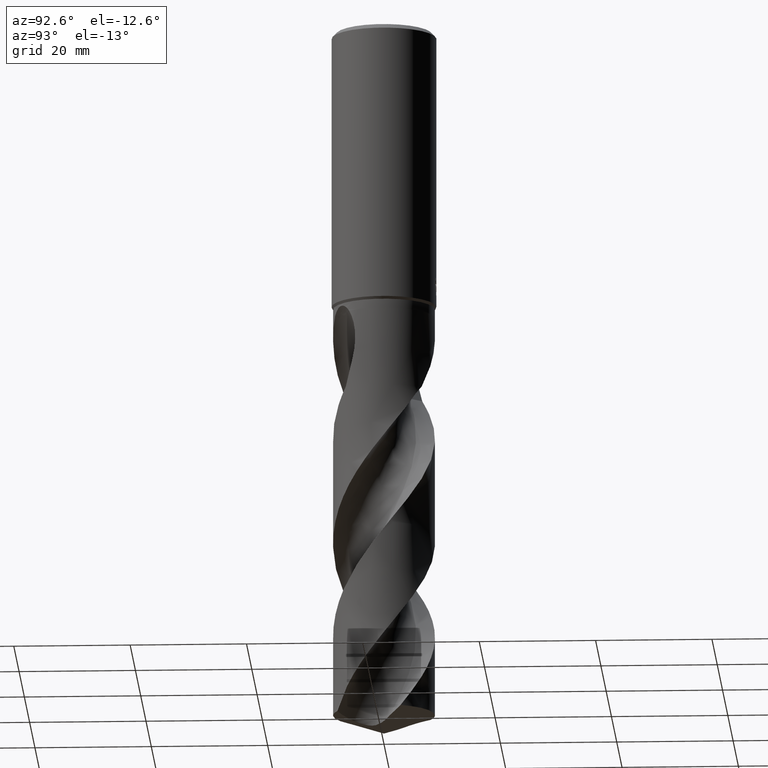
[diagram: clean part render]
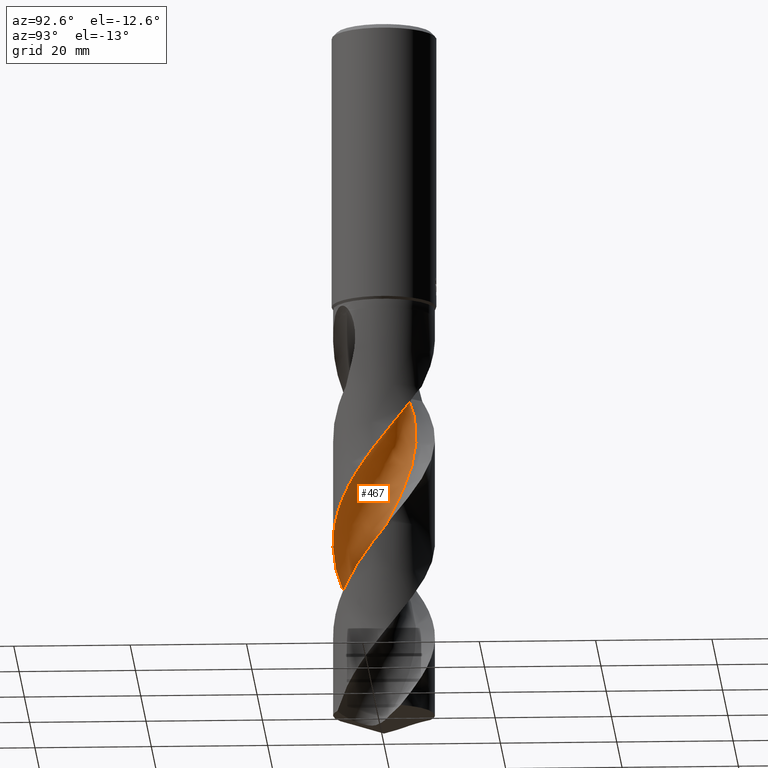
[diagram: same view with one face highlighted and labeled with its STEP entity id]
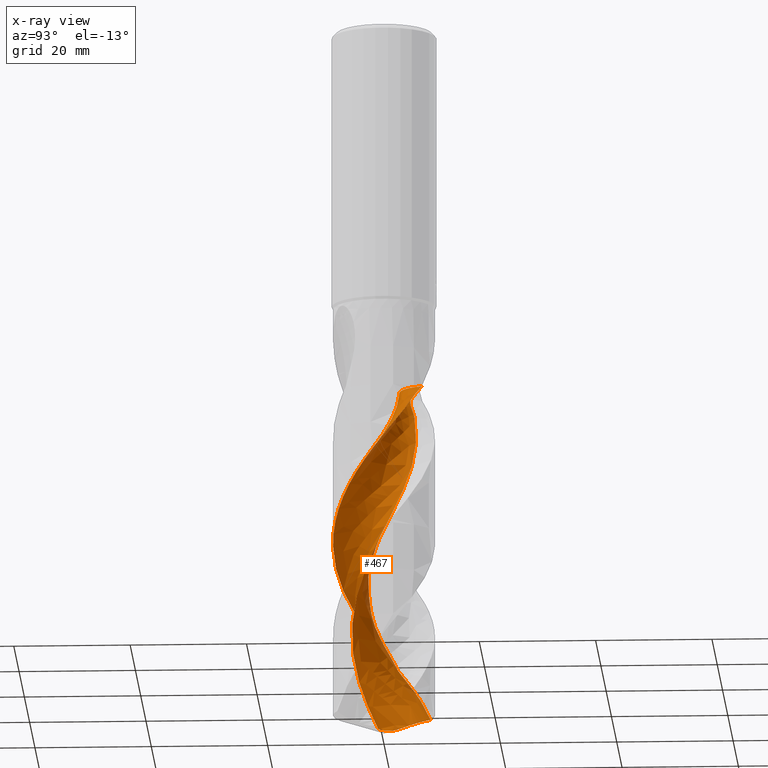
[diagram: x-ray of the same camera — body ghosted, the highlighted face saturated]
A machine part, auxiliary view. The second image highlights one B-rep face of the part: STEP entity #467.
The next image is the same camera in x-ray: the body ghosted, the highlighted face saturated — about 0% of this face is hidden behind the body in this view.
In plain terms, the highlighted face is a freeform B-spline surface patch.
Its self-contained STEP definition (entity closure, byte-faithful):
#283=VERTEX_POINT('',#768);
#329=EDGE_CURVE('',#283,#385,#818,.T.);
#385=VERTEX_POINT('',#880);
#467=ADVANCED_FACE('',(#973),#974,.F.);
#529=VERTEX_POINT('',#1043);
#555=VERTEX_POINT('',#1071);
#581=EDGE_CURVE('',#591,#529,#1098,.T.);
#583=VERTEX_POINT('',#1100);
#589=EDGE_CURVE('',#555,#583,#1106,.T.);
#591=VERTEX_POINT('',#1108);
#633=EDGE_CURVE('',#529,#283,#1155,.T.);
#671=EDGE_CURVE('',#385,#555,#1196,.T.);
#681=EDGE_CURVE('',#583,#591,#1206,.T.);
#768=CARTESIAN_POINT('',(5.57559287318262,6.74342982981346,-63.235));
#818=CIRCLE('',#1525,5.83333333);
#880=CARTESIAN_POINT('',(-0.629260716022749,2.65901798881034,-63.235));
#973=FACE_OUTER_BOUND('',#2023,.T.);
#974=B_SPLINE_SURFACE_WITH_KNOTS('',3,3,((#2024,#2025,#2026,#2027,#2028,#2029,#2030,#2031,#2032,#2033,#2034,#2035,#2036,#2037,#2038,#2039,#2040,#2041,#2042,#2043,#2044,#2045,#2046,#2047,#2048,#2049,#2050,#2051,#2052,#2053,#2054,#2055,#2056,#2057,#2058,#2059,#2060,#2061,#2062,#2063,#2064,#2065,#2066,#2067,#2068,#2069,#2070,#2071,#2072,#2073,#2074,#2075,#2076,#2077,#2078,#2079,#2080,#2081),(#2082,#2083,#2084,#2085,#2086,#2087,#2088,#2089,#2090,#2091,#2092,#2093,#2094,#2095,#2096,#2097,#2098,#2099,#2100,#2101,#2102,#2103,#2104,#2105,#2106,#2107,#2108,#2109,#2110,#2111,#2112,#2113,#2114,#2115,#2116,#2117,#2118,#2119,#2120,#2121,#2122,#2123,#2124,#2125,#2126,#2127,#2128,#2129,#2130,#2131,#2132,#2133,#2134,#2135,#2136,#2137,#2138,#2139),(#2140,#2141,#2142,#2143,#2144,#2145,#2146,#2147,#2148,#2149,#2150,#2151,#2152,#2153,#2154,#2155,#2156,#2157,#2158,#2159,#2160,#2161,#2162,#2163,#2164,#2165,#2166,#2167,#2168,#2169,#2170,#2171,#2172,#2173,#2174,#2175,#2176,#2177,#2178,#2179,#2180,#2181,#2182,#2183,#2184,#2185,#2186,#2187,#2188,#2189,#2190,#2191,#2192,#2193,#2194,#2195,#2196,#2197),(#2198,#2199,#2200,#2201,#2202,#2203,#2204,#2205,#2206,#2207,#2208,#2209,#2210,#2211,#2212,#2213,#2214,#2215,#2216,#2217,#2218,#2219,#2220,#2221,#2222,#2223,#2224,#2225,#2226,#2227,#2228,#2229,#2230,#2231,#2232,#2233,#2234,#2235,#2236,#2237,#2238,#2239,#2240,#2241,#2242,#2243,#2244,#2245,#2246,#2247,#2248,#2249,#2250,#2251,#2252,#2253,#2254,#2255),(#2256,#2257,#2258,#2259,#2260,#2261,#2262,#2263,#2264,#2265,#2266,#2267,#2268,#2269,#2270,#2271,#2272,#2273,#2274,#2275,#2276,#2277,#2278,#2279,#2280,#2281,#2282,#2283,#2284,#2285,#2286,#2287,#2288,#2289,#2290,#2291,#2292,#2293,#2294,#2295,#2296,#2297,#2298,#2299,#2300,#2301,#2302,#2303,#2304,#2305,#2306,#2307,#2308,#2309,#2310,#2311,#2312,#2313),(#2314,#2315,#2316,#2317,#2318,#2319,#2320,#2321,#2322,#2323,#2324,#2325,#2326,#2327,#2328,#2329,#2330,#2331,#2332,#2333,#2334,#2335,#2336,#2337,#2338,#2339,#2340,#2341,#2342,#2343,#2344,#2345,#2346,#2347,#2348,#2349,#2350,#2351,#2352,#2353,#2354,#2355,#2356,#2357,#2358,#2359,#2360,#2361,#2362,#2363,#2364,#2365,#2366,#2367,#2368,#2369,#2370,#2371),(#2372,#2373,#2374,#2375,#2376,#2377,#2378,#2379,#2380,#2381,#2382,#2383,#2384,#2385,#2386,#2387,#2388,#2389,#2390,#2391,#2392,#2393,#2394,#2395,#2396,#2397,#2398,#2399,#2400,#2401,#2402,#2403,#2404,#2405,#2406,#2407,#2408,#2409,#2410,#2411,#2412,#2413,#2414,#2415,#2416,#2417,#2418,#2419,#2420,#2421,#2422,#2423,#2424,#2425,#2426,#2427,#2428,#2429),(#2430,#2431,#2432,#2433,#2434,#2435,#2436,#2437,#2438,#2439,#2440,#2441,#2442,#2443,#2444,#2445,#2446,#2447,#2448,#2449,#2450,#2451,#2452,#2453,#2454,#2455,#2456,#2457,#2458,#2459,#2460,#2461,#2462,#2463,#2464,#2465,#2466,#2467,#2468,#2469,#2470,#2471,#2472,#2473,#2474,#2475,#2476,#2477,#2478,#2479,#2480,#2481,#2482,#2483,#2484,#2485,#2486,#2487),(#2488,#2489,#2490,#2491,#2492,#2493,#2494,#2495,#2496,#2497,#2498,#2499,#2500,#2501,#2502,#2503,#2504,#2505,#2506,#2507,#2508,#2509,#2510,#2511,#2512,#2513,#2514,#2515,#2516,#2517,#2518,#2519,#2520,#2521,#2522,#2523,#2524,#2525,#2526,#2527,#2528,#2529,#2530,#2531,#2532,#2533,#2534,#2535,#2536,#2537,#2538,#2539,#2540,#2541,#2542,#2543,#2544,#2545),(#2546,#2547,#2548,#2549,#2550,#2551,#2552,#2553,#2554,#2555,#2556,#2557,#2558,#2559,#2560,#2561,#2562,#2563,#2564,#2565,#2566,#2567,#2568,#2569,#2570,#2571,#2572,#2573,#2574,#2575,#2576,#2577,#2578,#2579,#2580,#2581,#2582,#2583,#2584,#2585,#2586,#2587,#2588,#2589,#2590,#2591,#2592,#2593,#2594,#2595,#2596,#2597,#2598,#2599,#2600,#2601,#2602,#2603),(#2604,#2605,#2606,#2607,#2608,#2609,#2610,#2611,#2612,#2613,#2614,#2615,#2616,#2617,#2618,#2619,#2620,#2621,#2622,#2623,#2624,#2625,#2626,#2627,#2628,#2629,#2630,#2631,#2632,#2633,#2634,#2635,#2636,#2637,#2638,#2639,#2640,#2641,#2642,#2643,#2644,#2645,#2646,#2647,#2648,#2649,#2650,#2651,#2652,#2653,#2654,#2655,#2656,#2657,#2658,#2659,#2660,#2661),(#2662,#2663,#2664,#2665,#2666,#2667,#2668,#2669,#2670,#2671,#2672,#2673,#2674,#2675,#2676,#2677,#2678,#2679,#2680,#2681,#2682,#2683,#2684,#2685,#2686,#2687,#2688,#2689,#2690,#2691,#2692,#2693,#2694,#2695,#2696,#2697,#2698,#2699,#2700,#2701,#2702,#2703,#2704,#2705,#2706,#2707,#2708,#2709,#2710,#2711,#2712,#2713,#2714,#2715,#2716,#2717,#2718,#2719),(#2720,#2721,#2722,#2723,#2724,#2725,#2726,#2727,#2728,#2729,#2730,#2731,#2732,#2733,#2734,#2735,#2736,#2737,#2738,#2739,#2740,#2741,#2742,#2743,#2744,#2745,#2746,#2747,#2748,#2749,#2750,#2751,#2752,#2753,#2754,#2755,#2756,#2757,#2758,#2759,#2760,#2761,#2762,#2763,#2764,#2765,#2766,#2767,#2768,#2769,#2770,#2771,#2772,#2773,#2774,#2775,#2776,#2777),(#2778,#2779,#2780,#2781,#2782,#2783,#2784,#2785,#2786,#2787,#2788,#2789,#2790,#2791,#2792,#2793,#2794,#2795,#2796,#2797,#2798,#2799,#2800,#2801,#2802,#2803,#2804,#2805,#2806,#2807,#2808,#2809,#2810,#2811,#2812,#2813,#2814,#2815,#2816,#2817,#2818,#2819,#2820,#2821,#2822,#2823,#2824,#2825,#2826,#2827,#2828,#2829,#2830,#2831,#2832,#2833,#2834,#2835)),.UNSPECIFIED.,.F.,.F.,.F.,(4,1,1,1,1,1,1,1,1,1,1,4),(4,1,2,2,2,2,2,2,1,2,1,2,1,2,1,2,1,2,1,2,1,2,1,2,1,2,1,2,1,2,1,2,2,1,2,4),(-2.46508011988919E-016,0.294525409162507,0.589050818325014,0.883576227487521,1.17810163665003,1.47262704581253,1.76715245497504,2.06167786413755,2.35620327330006,2.65072868246256,2.94525409162507,3.14160436440007),(0.0,1.39101639114549,2.78203278229099,4.17304917343648,5.56406556458198,6.95508195572747,8.34609834687297,11.128131129164,13.9101639114549,16.6921966937459,19.4742294760369,22.2562622583279,25.0382950406189,27.8203278229099,30.6023606052009,33.3843933874919,36.1664261697829,38.9484589520739,41.7304917343648,44.5125245166558,47.2945572989468,50.0765900812378,52.8586228635288,55.6406556458198,58.4226884281108,61.2047212104018,63.9867539926927,66.7687867749837,69.5508195572747,72.3328523395657,75.1148851218567,77.8969179041477,80.6789506864387,83.4609834687297,86.2430162510207,89.0250490333116),.UNSPECIFIED.);
#1043=CARTESIAN_POINT('',(4.08910406473381E-015,-8.74995746372751,-90.118451024961));
#1071=CARTESIAN_POINT('',(-4.12478955449379,4.33354377550621,-63.235));
#1098=B_SPLINE_CURVE_WITH_KNOTS('',3,(#4300,#4301,#4302,#4303,#4304,#4305,#4306,#4307,#4308,#4309,#4310,#4311,#4312,#4313,#4314,#4315,#4316,#4317,#4318,#4319,#4320,#4321,#4322,#4323,#4324,#4325,#4326,#4327,#4328,#4329,#4330,#4331,#4332,#4333,#4334,#4335,#4336,#4337,#4338,#4339,#4340,#4341,#4342,#4343,#4344,#4345,#4346,#4347,#4348,#4349,#4350,#4351,#4352,#4353,#4354,#4355,#4356,#4357,#4358,#4359,#4360,#4361,#4362,#4363,#4364,#4365,#4366,#4367,#4368,#4369,#4370,#4371,#4372,#4373),.UNSPECIFIED.,.F.,.F.,(4,2,2,2,2,2,2,2,2,2,2,2,2,2,2,2,2,2,2,2,2,2,2,2,2,2,2,2,2,2,2,2,2,2,2,2,4),(0.0,2.36497755352249,6.78499535769008,9.76431037179794,10.6457926761771,12.8806068195118,13.9879459035432,15.4655499071168,19.1794870382798,20.5851091536421,23.4414272755768,25.8957393514513,27.7076913677369,28.6975368126618,30.3742090805714,33.4579920815654,35.1436729529861,38.2149207105412,39.8935159489605,42.932040089916,44.2124810737531,47.3008017942767,50.1007945594739,52.7894991489171,53.6686242669561,57.2784470380588,58.8646897885299,62.0038438197224,64.5518003567759,66.1054916790928,68.2085336461381,69.1730580654914,70.675053555753,71.3917388857173,72.372174890273,74.4709520451919,76.1527071301385),.UNSPECIFIED.);
#1100=CARTESIAN_POINT('',(-5.37178128145233,-1.24871425534203,-120.992700976098));
#1106=B_SPLINE_CURVE_WITH_KNOTS('',3,(#4402,#4403,#4404,#4405,#4406,#4407,#4408,#4409,#4410,#4411,#4412,#4413,#4414,#4415,#4416,#4417,#4418,#4419,#4420,#4421,#4422,#4423,#4424,#4425,#4426,#4427,#4428,#4429,#4430,#4431,#4432,#4433,#4434,#4435,#4436,#4437,#4438,#4439,#4440,#4441,#4442,#4443,#4444,#4445,#4446,#4447,#4448,#4449,#4450,#4451,#4452,#4453,#4454,#4455,#4456,#4457,#4458,#4459),.UNSPECIFIED.,.F.,.F.,(4,1,2,2,2,2,2,2,1,2,1,2,1,2,1,2,1,2,1,2,1,2,1,2,1,2,1,2,1,2,1,2,2,1,2,4),(0.0,1.39101639114549,2.78203278229099,4.17304917343648,5.56406556458198,6.95508195572747,8.34609834687297,11.128131129164,13.9101639114549,16.6921966937459,19.4742294760369,22.2562622583279,25.0382950406189,27.8203278229099,30.6023606052009,33.3843933874919,36.1664261697829,38.9484589520739,41.7304917343648,44.5125245166558,47.2945572989468,50.0765900812378,52.8586228635288,55.6406556458198,58.4226884281108,61.2047212104018,63.9867539926927,66.7687867749837,69.5508195572747,72.3328523395657,75.1148851218567,77.8969179041477,80.6789506864387,83.4609834687297,86.2430162510207,89.0250490333116),.UNSPECIFIED.);
#1108=CARTESIAN_POINT('',(-3.89440784613369,7.83556555252857,-119.815260450171));
#1155=B_SPLINE_CURVE_WITH_KNOTS('',3,(#4577,#4578,#4579,#4580,#4581,#4582,#4583,#4584,#4585,#4586,#4587,#4588,#4589,#4590,#4591,#4592,#4593,#4594,#4595,#4596,#4597,#4598,#4599,#4600,#4601,#4602,#4603,#4604,#4605,#4606,#4607,#4608,#4609,#4610,#4611,#4612,#4613,#4614,#4615,#4616,#4617,#4618,#4619,#4620,#4621,#4622,#4623,#4624,#4625,#4626,#4627,#4628,#4629,#4630,#4631,#4632,#4633,#4634,#4635,#4636,#4637,#4638,#4639,#4640,#4641,#4642,#4643,#4644,#4645,#4646,#4647,#4648,#4649,#4650),.UNSPECIFIED.,.F.,.F.,(4,2,2,2,2,2,2,2,2,2,2,2,2,2,2,2,2,2,2,2,2,2,2,2,2,2,2,2,2,2,2,2,2,2,2,2,4),(0.0,2.36497755352249,6.78499535769008,9.76431037179794,10.6457926761771,12.8806068195118,13.9879459035432,15.4655499071168,19.1794870382798,20.5851091536421,23.4414272755768,25.8957393514513,27.7076913677369,28.6975368126618,30.3742090805714,33.4579920815654,35.1436729529861,38.2149207105412,39.8935159489605,42.932040089916,44.2124810737531,47.3008017942767,50.1007945594739,52.7894991489171,53.6686242669561,57.2784470380588,58.8646897885299,62.0038438197224,64.5518003567759,66.1054916790928,68.2085336461381,69.1730580654914,70.675053555753,71.3917388857173,72.372174890273,74.4709520451919,76.1527071301385),.UNSPECIFIED.);
#1196=CIRCLE('',#5080,5.83333333);
#1206=B_SPLINE_CURVE_WITH_KNOTS('',3,(#5117,#5118,#5119,#5120,#5121,#5122,#5123,#5124,#5125,#5126,#5127,#5128,#5129,#5130,#5131,#5132,#5133,#5134,#5135,#5136),.UNSPECIFIED.,.F.,.F.,(4,2,2,2,2,2,2,2,2,4),(0.0,3.53095461658904,5.94383471938948,7.94481645947721,10.7230416152661,13.9690286260028,17.7127399314538,22.0606989747891,27.0299072087177,31.8308041320606),.UNSPECIFIED.);
#1525=AXIS2_PLACEMENT_3D('',#5547,#5548,#5549);
#2023=EDGE_LOOP('',(#5742,#5743,#5744,#5745,#5746,#5747));
#2024=CARTESIAN_POINT('',(4.1247895544938,12.5831228844938,-63.235));
#2025=CARTESIAN_POINT('',(4.46814944123407,12.5660734084603,-63.5458308881805));
#2026=CARTESIAN_POINT('',(5.16212800701497,12.4663562220963,-64.1718374200186));
#2027=CARTESIAN_POINT('',(5.85542816044551,12.2001236636751,-64.8008172710916));
#2028=CARTESIAN_POINT('',(6.53082137072968,11.8333399864418,-65.4235219924348));
#2029=CARTESIAN_POINT('',(6.85950003374023,11.6291963160319,-65.7336230986909));
#2030=CARTESIAN_POINT('',(7.4944882160514,11.1799114364705,-66.3504770073063));
#2031=CARTESIAN_POINT('',(7.80281379461363,10.9517236167037,-66.659397911726));
#2032=CARTESIAN_POINT('',(8.40505972410504,10.4923345592882,-67.2813787421841));
#2033=CARTESIAN_POINT('',(8.69747772610217,10.2542019039367,-67.5930795307223));
#2034=CARTESIAN_POINT('',(9.26431222311129,9.76279423942182,-68.2189042558515));
#2035=CARTESIAN_POINT('',(9.53667389983733,9.50260400498351,-68.5313482761966));
#2036=CARTESIAN_POINT('',(10.3150454616773,8.67904420708619,-69.4659585836034));
#2037=CARTESIAN_POINT('',(10.7874928422928,8.0858131792305,-70.0886009849519));
#2038=CARTESIAN_POINT('',(11.6218357112914,6.82156585193735,-71.3320002663082));
#2039=CARTESIAN_POINT('',(12.3534104189653,5.49223526013158,-72.5769426076312));
#2040=CARTESIAN_POINT('',(12.8529296826897,4.06005772939326,-73.8235136359982));
#2041=CARTESIAN_POINT('',(13.2235043753016,2.592412961035,-75.0685137592927));
#2042=CARTESIAN_POINT('',(13.4747007258697,1.09718064928777,-76.3132306475486));
#2043=CARTESIAN_POINT('',(13.4733065852726,-0.419759032728676,-77.5589423789596));
#2044=CARTESIAN_POINT('',(13.3370411988635,-1.92782172385749,-78.8042595358406));
#2045=CARTESIAN_POINT('',(13.0788702668241,-3.42213484227575,-80.0491290257025));
#2046=CARTESIAN_POINT('',(12.5755555988371,-4.85307880044625,-81.2948047409504));
#2047=CARTESIAN_POINT('',(11.9483379591479,-6.23109924349281,-82.5400728387708));
#2048=CARTESIAN_POINT('',(11.210615305247,-7.55590165795152,-83.7849285724617));
#2049=CARTESIAN_POINT('',(10.2623506418862,-8.73984396409827,-85.0306101477444));
#2050=CARTESIAN_POINT('',(9.21454932229621,-9.83280797925441,-86.2758683950743));
#2051=CARTESIAN_POINT('',(8.08006764103208,-10.8389854518534,-87.5207155673436));
#2052=CARTESIAN_POINT('',(6.79349893999189,-11.6425706445821,-88.7663989733762));
#2053=CARTESIAN_POINT('',(5.44309793509655,-12.3273608743323,-90.0116665314772));
#2054=CARTESIAN_POINT('',(4.03962133247768,-12.9015723658808,-91.2565171165244));
#2055=CARTESIAN_POINT('',(2.55967165755353,-13.23431650984,-92.5022021692654));
#2056=CARTESIAN_POINT('',(1.05879386196518,-13.4338672593588,-93.7474756830601));
#2057=CARTESIAN_POINT('',(-0.45559515525444,-13.5115114158149,-94.9923304343017));
#2058=CARTESIAN_POINT('',(-1.9622840836574,-13.3359929024658,-96.2380126730449));
#2059=CARTESIAN_POINT('',(-3.44467120859724,-13.0278630603102,-97.4832791908465));
#2060=CARTESIAN_POINT('',(-4.89949457627382,-12.6002126855824,-98.7281306075308));
#2061=CARTESIAN_POINT('',(-6.26331259630951,-11.9361600841968,-99.973807831763));
#2062=CARTESIAN_POINT('',(-7.56032363177201,-11.1549746981619,-101.219063892672));
#2063=CARTESIAN_POINT('',(-8.79178268070633,-10.2701153054494,-102.463912643894));
#2064=CARTESIAN_POINT('',(-9.85913822576755,-9.19226185734688,-103.70960907574));
#2065=CARTESIAN_POINT('',(-10.824676894688,-8.02596545528941,-104.954896637793));
#2066=CARTESIAN_POINT('',(-11.6940500797716,-6.78354814000147,-106.199748309738));
#2067=CARTESIAN_POINT('',(-12.3448119048054,-5.41337449460028,-107.445398773429));
#2068=CARTESIAN_POINT('',(-12.8703366048738,-3.99345402815205,-108.690623139341));
#2069=CARTESIAN_POINT('',(-13.279902949165,-2.53340659277838,-109.9354795985));
#2070=CARTESIAN_POINT('',(-13.4405434742881,-1.02494799277796,-111.181244067654));
#2071=CARTESIAN_POINT('',(-13.466239010239,0.489045993342948,-112.426618772631));
#2072=CARTESIAN_POINT('',(-13.369532503358,2.00225918351538,-113.671459165556));
#2073=CARTESIAN_POINT('',(-13.0233222637344,3.47867445880841,-114.91697327911));
#2074=CARTESIAN_POINT('',(-12.5488838615739,4.91588217705662,-116.162035246577));
#2075=CARTESIAN_POINT('',(-12.2526836083527,5.61419610085088,-116.784537108631));
#2076=CARTESIAN_POINT('',(-11.5449399699921,6.95156546439018,-118.030251055423));
#2077=CARTESIAN_POINT('',(-10.7287443904184,8.23002199353824,-119.275818233211));
#2078=CARTESIAN_POINT('',(-9.7071611310063,9.35157201726989,-120.520014815863));
#2079=CARTESIAN_POINT('',(-8.59187872035512,10.3754060854756,-121.764506382897));
#2080=CARTESIAN_POINT('',(-7.9992598368917,10.843277320528,-122.385923089966));
#2081=CARTESIAN_POINT('',(-7.37837071943738,11.2647415044959,-123.008267689793));
#2082=CARTESIAN_POINT('',(4.52972345458758,12.1781532315367,-63.235));
#2083=CARTESIAN_POINT('',(4.87332748697494,12.161347884978,-63.5458375249022));
#2084=CARTESIAN_POINT('',(5.56136938479768,12.0555371704777,-64.1722061173283));
#2085=CARTESIAN_POINT('',(6.23484935095568,11.7707703485416,-64.8017901684067));
#2086=CARTESIAN_POINT('',(6.88210804424558,11.3806786662394,-65.4244813332906));
#2087=CARTESIAN_POINT('',(7.19566819093594,11.1651472335082,-65.7344634035653));
#2088=CARTESIAN_POINT('',(7.79835730223514,10.694098062891,-66.3507205004793));
#2089=CARTESIAN_POINT('',(8.09146924561794,10.4568402846304,-66.6593896215767));
#2090=CARTESIAN_POINT('',(8.66543783214335,9.98200663163854,-67.2813009069536));
#2091=CARTESIAN_POINT('',(8.94392590492356,9.73703590922603,-67.593042270497));
#2092=CARTESIAN_POINT('',(9.48332432763268,9.23342586257388,-68.2192000244235));
#2093=CARTESIAN_POINT('',(9.74126580557391,8.9674677051102,-68.5317614122891));
#2094=CARTESIAN_POINT('',(10.4742571581274,8.12799889070798,-69.4664402742217));
#2095=CARTESIAN_POINT('',(10.9154679255472,7.52665467759698,-70.0890837208473));
#2096=CARTESIAN_POINT('',(11.6854903476768,6.25149231833382,-71.3322883681585));
#2097=CARTESIAN_POINT('',(12.3529314230148,4.91687573821729,-72.5771968052374));
#2098=CARTESIAN_POINT('',(12.7883483924582,3.49009820932516,-73.8239037655055));
#2099=CARTESIAN_POINT('',(13.0949601114819,2.03339529475361,-75.06887604004));
#2100=CARTESIAN_POINT('',(13.2840192653908,0.554345144549024,-76.3135355819287));
#2101=CARTESIAN_POINT('',(13.2239614463145,-0.936339495598364,-77.5592936690597));
#2102=CARTESIAN_POINT('',(13.0308469727969,-2.41287145523897,-78.8046160010877));
#2103=CARTESIAN_POINT('',(12.7193163958971,-3.87130713269714,-80.0494440746791));
#2104=CARTESIAN_POINT('',(12.1693287725762,-5.25805627195053,-81.2951623442608));
#2105=CARTESIAN_POINT('',(11.4989240134451,-6.58754536677298,-82.54043057146));
#2106=CARTESIAN_POINT('',(10.7227312533776,-7.86086447783441,-83.7852433879595));
#2107=CARTESIAN_POINT('',(9.74503796215104,-8.98766433954083,-85.030968198074));
#2108=CARTESIAN_POINT('',(8.67252851763681,-10.0205327684808,-86.2762254750638));
#2109=CARTESIAN_POINT('',(7.51876957814375,-10.9653908297384,-87.5210288933036));
#2110=CARTESIAN_POINT('',(6.22333116598994,-11.7053100345474,-88.7667557060099));
#2111=CARTESIAN_POINT('',(4.86949295781898,-12.3252095809157,-90.0120232641108));
#2112=CARTESIAN_POINT('',(3.46811006117816,-12.8351745181319,-91.2568304683004));
#2113=CARTESIAN_POINT('',(2.00085117547482,-13.104906304483,-92.5025590365666));
#2114=CARTESIAN_POINT('',(0.518194207343128,-13.2420884461782,-93.747833261944));
#2115=CARTESIAN_POINT('',(-0.972968110056844,-13.259799894,-94.9926450234931));
#2116=CARTESIAN_POINT('',(-2.44683851094435,-13.0290169560394,-96.2383704732807));
#2117=CARTESIAN_POINT('',(-3.89140169920038,-12.6680591160142,-97.4836369910824));
#2118=CARTESIAN_POINT('',(-5.30448204899509,-12.1915334557923,-98.7284449615846));
#2119=CARTESIAN_POINT('',(-6.61904586510097,-11.4861808993325,-99.9741650113512));
#2120=CARTESIAN_POINT('',(-7.8628827177025,-10.667650196852,-101.219419907852));
#2121=CARTESIAN_POINT('',(-9.03877741062048,-9.75047358514484,-102.464225233085));
#2122=CARTESIAN_POINT('',(-10.045986133054,-8.649937766332,-103.709966323135));
#2123=CARTESIAN_POINT('',(-10.9489856407116,-7.46598806446471,-104.955255825868));
#2124=CARTESIAN_POINT('',(-11.7552312771178,-6.21145530347092,-106.200063689964));
#2125=CARTESIAN_POINT('',(-12.3417426578114,-4.83977408543205,-107.445754325135));
#2126=CARTESIAN_POINT('',(-12.8024313369883,-3.42387918795923,-108.690975068444));
#2127=CARTESIAN_POINT('',(-13.1484203943252,-1.9732751072132,-109.935790499904));
#2128=CARTESIAN_POINT('',(-13.2478900378453,-0.484657744320878,-111.181606494984));
#2129=CARTESIAN_POINT('',(-13.2136747079842,1.00406051645346,-112.426989350817));
#2130=CARTESIAN_POINT('',(-13.060106340047,2.48731855663884,-113.671779429472));
#2131=CARTESIAN_POINT('',(-12.6628605049956,3.92486817480001,-114.917320839827));
#2132=CARTESIAN_POINT('',(-12.1403988408426,5.31857473921583,-116.162373362652));
#2133=CARTESIAN_POINT('',(-11.8222249282699,5.9932989181445,-116.784872498307));
#2134=CARTESIAN_POINT('',(-11.0746112456427,7.27990105970436,-118.030606628173));
#2135=CARTESIAN_POINT('',(-10.2232029518613,8.50475801278812,-119.276130170301));
#2136=CARTESIAN_POINT('',(-9.17556605933932,9.56708616255077,-120.520359552519));
#2137=CARTESIAN_POINT('',(-8.03921986229923,10.5290537092283,-121.764894590788));
#2138=CARTESIAN_POINT('',(-7.43912098285074,10.9663516077207,-122.386236390088));
#2139=CARTESIAN_POINT('',(-6.81327839255935,11.357706171746,-123.008608288816));
#2140=CARTESIAN_POINT('',(5.21945805508344,11.2481960732104,-63.2350000000004));
#2141=CARTESIAN_POINT('',(5.56362274579019,11.231806549006,-63.5458490410539));
#2142=CARTESIAN_POINT('',(6.23798519391112,11.1155699589172,-64.1728458991732));
#2143=CARTESIAN_POINT('',(6.86633189325907,10.7996136344414,-64.8034783668268));
#2144=CARTESIAN_POINT('',(7.45041390385753,10.3712513527018,-65.4261460261812));
#2145=CARTESIAN_POINT('',(7.73036219510499,10.1374288966677,-65.7359215298727));
#2146=CARTESIAN_POINT('',(8.26200373024287,9.63243146956231,-66.3511430207239));
#2147=CARTESIAN_POINT('',(8.5220009665151,9.38154608425107,-66.6593752372618));
#2148=CARTESIAN_POINT('',(9.03483889736328,8.88420993259868,-67.2811658433152));
#2149=CARTESIAN_POINT('',(9.28344132358386,8.62969449121478,-67.5929776058965));
#2150=CARTESIAN_POINT('',(9.76435290604389,8.10981647694952,-68.2197132622907));
#2151=CARTESIAN_POINT('',(9.99174557582758,7.83659903321784,-68.5324782846017));
#2152=CARTESIAN_POINT('',(10.6292650849828,6.97877027899163,-69.4672761551387));
#2153=CARTESIAN_POINT('',(11.005600959389,6.37046300139298,-70.0899213482274));
#2154=CARTESIAN_POINT('',(11.6437542477582,5.09254415223436,-71.3327883270126));
#2155=CARTESIAN_POINT('',(12.1813689629586,3.76637312832205,-72.5776378987501));
#2156=CARTESIAN_POINT('',(12.4901909035175,2.3694023351496,-73.8245806980421));
#2157=CARTESIAN_POINT('',(12.6721292708957,0.953547902860663,-75.0695047176697));
#2158=CARTESIAN_POINT('',(12.7417204956876,-0.474715205116978,-76.314064725776));
#2159=CARTESIAN_POINT('',(12.5721278825733,-1.89549829423372,-77.5599031852117));
#2160=CARTESIAN_POINT('',(12.2746721127868,-3.29211612487112,-78.8052346082439));
#2161=CARTESIAN_POINT('',(11.8670673607719,-4.66297941538702,-80.0499907026175));
#2162=CARTESIAN_POINT('',(11.2368445168583,-5.94750527243065,-81.2957829288047));
#2163=CARTESIAN_POINT('',(10.4944614171505,-7.16713217882027,-82.5410512644779));
#2164=CARTESIAN_POINT('',(9.65659925260098,-8.32608422093352,-83.7857897370031));
#2165=CARTESIAN_POINT('',(8.63699620019864,-9.32988054385869,-85.0315894192788));
#2166=CARTESIAN_POINT('',(7.53289317993884,-10.2352390521429,-86.2768451744918));
#2167=CARTESIAN_POINT('',(6.35876450598055,-11.0517502283753,-87.5215725869147));
#2168=CARTESIAN_POINT('',(5.06446593537534,-11.6617156589149,-88.7673746431406));
#2169=CARTESIAN_POINT('',(3.72299502655743,-12.1508229919814,-90.0126423583523));
#2170=CARTESIAN_POINT('',(2.34484955504589,-12.5329239518035,-91.2573741371596));
#2171=CARTESIAN_POINT('',(0.921654889419101,-12.6804022784266,-92.5031783489254));
#2172=CARTESIAN_POINT('',(-0.506069344825205,-12.6982579671154,-93.7484536831035));
#2173=CARTESIAN_POINT('',(-1.93301011739371,-12.6029989637401,-94.9931908775783));
#2174=CARTESIAN_POINT('',(-3.32486084425975,-12.2714255729785,-96.2389914699404));
#2175=CARTESIAN_POINT('',(-4.67811654432133,-11.8160340458186,-97.4842577308959));
#2176=CARTESIAN_POINT('',(-5.99322387578529,-11.2541416813073,-98.7289905760355));
#2177=CARTESIAN_POINT('',(-7.19703944689371,-10.4807993673412,-99.9747846596802));
#2178=CARTESIAN_POINT('',(-8.32346126290496,-9.60334988198012,-101.2200378215));
#2179=CARTESIAN_POINT('',(-9.37865176916791,-8.63801893276871,-102.464767539145));
#2180=CARTESIAN_POINT('',(-10.2588488802942,-7.50995586028009,-103.71058630973));
#2181=CARTESIAN_POINT('',(-11.0315436441463,-6.30924587382241,-104.955879024683));
#2182=CARTESIAN_POINT('',(-11.7079498804098,-5.04920223072667,-106.200611046321));
#2183=CARTESIAN_POINT('',(-12.1655216480257,-3.69355748227829,-107.446371175446));
#2184=CARTESIAN_POINT('',(-12.4977403314861,-2.30493825393858,-108.691585865054));
#2185=CARTESIAN_POINT('',(-12.7193831696972,-0.892071501967538,-109.936329922221));
#2186=CARTESIAN_POINT('',(-12.7024021840692,0.538727717945686,-111.182235406764));
#2187=CARTESIAN_POINT('',(-12.5558676457159,1.95913310756504,-112.42763237739));
#2188=CARTESIAN_POINT('',(-12.2974651315186,3.36562416325538,-113.672335100025));
#2189=CARTESIAN_POINT('',(-11.8096790005399,4.71031449697884,-114.917924081082));
#2190=CARTESIAN_POINT('',(-11.2040760131427,6.00278462558656,-116.162959933206));
#2191=CARTESIAN_POINT('',(-10.8489523572699,6.62381674600394,-116.785454522191));
#2192=CARTESIAN_POINT('',(-10.0366571245699,7.79706885835792,-118.031223587903));
#2193=CARTESIAN_POINT('',(-9.13072121224314,8.90429232008645,-119.276671388947));
#2194=CARTESIAN_POINT('',(-8.04854078068042,9.84045908403792,-120.52095792802));
#2195=CARTESIAN_POINT('',(-6.88841424385542,10.6724557011229,-121.765568047841));
#2196=CARTESIAN_POINT('',(-6.28242193650808,11.0463929643356,-122.38678008832));
#2197=CARTESIAN_POINT('',(-5.65560106324975,11.3760633867701,-123.009199308862));
#2198=CARTESIAN_POINT('',(5.8045736682614,9.61293642148042,-63.2350000000002));
#2199=CARTESIAN_POINT('',(6.14972421572098,9.59689965342888,-63.5458595575162));
#2200=CARTESIAN_POINT('',(6.79991037092463,9.47165426831417,-64.1734300993506));
#2201=CARTESIAN_POINT('',(7.34988968282885,9.13057986387627,-64.8050199118996));
#2202=CARTESIAN_POINT('',(7.82661930437497,8.67479325417655,-65.4276660994744));
#2203=CARTESIAN_POINT('',(8.05035415914082,8.42935201290528,-65.7372529873195));
#2204=CARTESIAN_POINT('',(8.46522676633869,7.90656299090666,-66.3515288339823));
#2205=CARTESIAN_POINT('',(8.67175526600396,7.65053608990712,-66.659362099719));
#2206=CARTESIAN_POINT('',(9.08704433016694,7.14751897597391,-67.2810425157717));
#2207=CARTESIAN_POINT('',(9.2885910409823,6.89231671442454,-67.5929185699452));
#2208=CARTESIAN_POINT('',(9.67846375002978,6.37455568735708,-68.2201819029768));
#2209=CARTESIAN_POINT('',(9.85884409958153,6.10422065613424,-68.5331328889191));
#2210=CARTESIAN_POINT('',(10.3513236132368,5.26161161603143,-69.4680394047535));
#2211=CARTESIAN_POINT('',(10.6315027455693,4.67155984656225,-70.0906862297857));
#2212=CARTESIAN_POINT('',(11.079164390366,3.44710868027598,-71.3332448326688));
#2213=CARTESIAN_POINT('',(11.4340978061908,2.18959544925419,-72.5780406787533));
#2214=CARTESIAN_POINT('',(11.5741788296821,0.890538138453851,-73.8251988341793));
#2215=CARTESIAN_POINT('',(11.5949431677143,-0.412389693761417,-75.0700787705117));
#2216=CARTESIAN_POINT('',(11.5151602076413,-1.71572659875882,-76.3145478885104));
#2217=CARTESIAN_POINT('',(11.2187757258494,-2.98847127620411,-77.5604597880389));
#2218=CARTESIAN_POINT('',(10.8063430395169,-4.22493963221628,-78.8057994389929));
#2219=CARTESIAN_POINT('',(10.2989634884103,-5.42826047664154,-80.0504898856042));
#2220=CARTESIAN_POINT('',(9.59808154561991,-6.53111057715916,-81.2963495548644));
#2221=CARTESIAN_POINT('',(8.8002183573366,-7.56169206961157,-82.5416180834934));
#2222=CARTESIAN_POINT('',(7.92363561263253,-8.52962128844016,-83.7862885693338));
#2223=CARTESIAN_POINT('',(6.8974368574656,-9.33860218928601,-85.0321567350543));
#2224=CARTESIAN_POINT('',(5.80350880582622,-10.0471690227054,-86.2774109778863));
#2225=CARTESIAN_POINT('',(4.65603091286064,-10.6705745378085,-87.5220690358407));
#2226=CARTESIAN_POINT('',(3.41995861065314,-11.0944944416015,-88.7679398989384));
#2227=CARTESIAN_POINT('',(2.15319560811561,-11.401241824613,-90.0132075834691));
#2228=CARTESIAN_POINT('',(0.864086401064984,-11.6099197489155,-91.2578706303532));
#2229=CARTESIAN_POINT('',(-0.442619445229897,-11.6010978449679,-92.5037438392757));
#2230=CARTESIAN_POINT('',(-1.73952824519293,-11.4715879003584,-93.7490202279282));
#2231=CARTESIAN_POINT('',(-3.02508775409921,-11.2421317485078,-94.9936893100067));
#2232=CARTESIAN_POINT('',(-4.25531290130996,-10.8015954810232,-96.2395585025519));
#2233=CARTESIAN_POINT('',(-5.43637902970702,-10.2504103749953,-97.4848245624221));
#2234=CARTESIAN_POINT('',(-6.57367698507671,-9.60864226205876,-98.7294887021062));
#2235=CARTESIAN_POINT('',(-7.58891218073832,-8.78593094027888,-99.9753506404561));
#2236=CARTESIAN_POINT('',(-8.52113375361014,-7.87503663278914,-101.220601893029));
#2237=CARTESIAN_POINT('',(-9.38209018163204,-6.89314490508834,-102.465262851938));
#2238=CARTESIAN_POINT('',(-10.0679816118699,-5.7808768284189,-103.711152363299));
#2239=CARTESIAN_POINT('',(-10.6463321275393,-4.61285127679174,-104.956448158297));
#2240=CARTESIAN_POINT('',(-11.1339608525336,-3.4014374568245,-106.201110823297));
#2241=CARTESIAN_POINT('',(-11.4134297766774,-2.12496070818773,-107.446934423933));
#2242=CARTESIAN_POINT('',(-11.5731139891331,-0.831438314800311,-108.692143615136));
#2243=CARTESIAN_POINT('',(-11.6326975039702,0.473110154394974,-109.936822474047));
#2244=CARTESIAN_POINT('',(-11.4737353800438,1.77020443371819,-111.182809688361));
#2245=CARTESIAN_POINT('',(-11.1957201700916,3.0436393178914,-112.428219538094));
#2246=CARTESIAN_POINT('',(-10.8202629189799,4.29428381435255,-113.672842572347));
#2247=CARTESIAN_POINT('',(-10.2429477823607,5.46625246942817,-114.918474774028));
#2248=CARTESIAN_POINT('',(-9.56208442638289,6.57719789176213,-116.163495690515));
#2249=CARTESIAN_POINT('',(-9.17730231467787,7.1050675768685,-116.785985900674));
#2250=CARTESIAN_POINT('',(-8.32151988872581,8.08744511969418,-118.031787034725));
#2251=CARTESIAN_POINT('',(-7.38853754055952,9.00206699156821,-119.277165587594));
#2252=CARTESIAN_POINT('',(-6.31171032897905,9.74209313502719,-120.521504243899));
#2253=CARTESIAN_POINT('',(-5.17404592823314,10.3771677956602,-121.766183077667));
#2254=CARTESIAN_POINT('',(-4.58718522745122,10.6575877589675,-122.387276474321));
#2255=CARTESIAN_POINT('',(-3.98582126826205,10.8982877549492,-123.009738985724));
#2256=CARTESIAN_POINT('',(5.88980167484523,7.87824031084648,-63.2349999999996));
#2257=CARTESIAN_POINT('',(6.23599803897841,7.86225492350787,-63.5458624102415));
#2258=CARTESIAN_POINT('',(6.86043367635433,7.73540679373771,-64.1735885061384));
#2259=CARTESIAN_POINT('',(7.32812993172404,7.3930440833977,-64.8054379075926));
#2260=CARTESIAN_POINT('',(7.69416879693809,6.94217685580011,-65.4280782714531));
#2261=CARTESIAN_POINT('',(7.86073762356416,6.70193528840614,-65.7376140151333));
#2262=CARTESIAN_POINT('',(8.15870398983769,6.19601764411844,-66.3516334496462));
#2263=CARTESIAN_POINT('',(8.31257366134676,5.95059182226303,-66.6593585379666));
#2264=CARTESIAN_POINT('',(8.63286519367906,5.47045540518832,-67.2810090745771));
#2265=CARTESIAN_POINT('',(8.78918301442467,5.2282555268322,-67.5929025591064));
#2266=CARTESIAN_POINT('',(9.09255159429861,4.73894753894088,-68.220308979458));
#2267=CARTESIAN_POINT('',(9.22878079175409,4.48501769503902,-68.5333103857716));
#2268=CARTESIAN_POINT('',(9.58688382782214,3.69907593723692,-69.4682463647713));
#2269=CARTESIAN_POINT('',(9.78034603076255,3.15440654310479,-70.0908936340422));
#2270=CARTESIAN_POINT('',(10.0612393491584,2.0364179105159,-71.3333686114867));
#2271=CARTESIAN_POINT('',(10.2612881293374,0.89763586628454,-72.578149896437));
#2272=CARTESIAN_POINT('',(10.2683170807455,-0.258741169754028,-73.8253664427622));
#2273=CARTESIAN_POINT('',(10.1676285217843,-1.40681846443603,-75.070234427806));
#2274=CARTESIAN_POINT('',(9.98116768921427,-2.54724725118594,-76.3146789085937));
#2275=CARTESIAN_POINT('',(9.60642439467718,-3.64152220469843,-77.5606106937616));
#2276=CARTESIAN_POINT('',(9.13045481669604,-4.69136098140975,-78.8059526135917));
#2277=CARTESIAN_POINT('',(8.57623191236558,-5.70539049458766,-80.0506252208971));
#2278=CARTESIAN_POINT('',(7.86047132064709,-6.61387651185918,-81.2965032179667));
#2279=CARTESIAN_POINT('',(7.06439416431738,-7.44744777945434,-82.5417717576738));
#2280=CARTESIAN_POINT('',(6.20620936841018,-8.22133953687951,-83.7864238315725));
#2281=CARTESIAN_POINT('',(5.23025101839909,-8.84197918375549,-85.0323105806872));
#2282=CARTESIAN_POINT('',(4.20318559576895,-9.36518176317943,-86.277564381163));
#2283=CARTESIAN_POINT('',(3.13726674553407,-9.81153309723201,-87.5222036803929));
#2284=CARTESIAN_POINT('',(2.01091981441706,-10.0743208157402,-88.768093124332));
#2285=CARTESIAN_POINT('',(0.868584267282755,-10.2282473122484,-90.0133608916064));
#2286=CARTESIAN_POINT('',(-0.284980304496394,-10.2968157094123,-91.2580052274237));
#2287=CARTESIAN_POINT('',(-1.43484164072942,-10.1722388789522,-92.503897185588));
#2288=CARTESIAN_POINT('',(-2.56378980167802,-9.93968272142826,-93.7491738365967));
#2289=CARTESIAN_POINT('',(-3.6751003359372,-9.62284887955327,-94.9938244880873));
#2290=CARTESIAN_POINT('',(-4.71902920189259,-9.12495924964141,-96.2397122140106));
#2291=CARTESIAN_POINT('',(-5.70751268565103,-8.53208959865501,-97.4849783018684));
#2292=CARTESIAN_POINT('',(-6.65147093049589,-7.8655006941518,-98.729623774921));
#2293=CARTESIAN_POINT('',(-7.47191490973084,-7.05028838062804,-99.9755040580637));
#2294=CARTESIAN_POINT('',(-8.20858994102111,-6.16376288927444,-101.220754892734));
#2295=CARTESIAN_POINT('',(-8.87886860295187,-5.22240691597063,-102.465397116411));
#2296=CARTESIAN_POINT('',(-9.3834062225063,-4.18165781217061,-103.711305883018));
#2297=CARTESIAN_POINT('',(-9.78526876995555,-3.10132465788853,-104.956602448241));
#2298=CARTESIAN_POINT('',(-10.1063652323937,-1.99124610625557,-106.201246338109));
#2299=CARTESIAN_POINT('',(-10.2383817839675,-0.842229048804168,-107.447087185704));
#2300=CARTESIAN_POINT('',(-10.2605660581382,0.310207072685862,-108.692294815734));
#2301=CARTESIAN_POINT('',(-10.1965117783923,1.46405791089815,-109.936956058806));
#2302=CARTESIAN_POINT('',(-9.94049482445842,2.59198952058986,-111.182965386269));
#2303=CARTESIAN_POINT('',(-9.57932392906883,3.6866155042998,-112.428378769003));
#2304=CARTESIAN_POINT('',(-9.13709234077103,4.754144814055,-113.67298012534));
#2305=CARTESIAN_POINT('',(-8.52424189593633,5.7348402039711,-114.91862417533));
#2306=CARTESIAN_POINT('',(-7.82405295083726,6.65023035718366,-116.163640883704));
#2307=CARTESIAN_POINT('',(-7.4379331641084,7.08033974453637,-116.786130074745));
#2308=CARTESIAN_POINT('',(-6.59594425151987,7.86743806081214,-118.031939726064));
#2309=CARTESIAN_POINT('',(-5.69298957931332,8.5899005293066,-119.277299670197));
#2310=CARTESIAN_POINT('',(-4.6782218790461,9.14378584332771,-120.521652310191));
#2311=CARTESIAN_POINT('',(-3.6192159728392,9.59693844130534,-121.766349913988));
#2312=CARTESIAN_POINT('',(-3.07780986626889,9.79342149530267,-122.38741111135));
#2313=CARTESIAN_POINT('',(-2.52663346860894,9.95637196609858,-123.00988532084));
#2314=CARTESIAN_POINT('',(5.46780224181327,6.19349971126267,-63.2349999999998));
#2315=CARTESIAN_POINT('',(5.81501430606422,6.17725991141482,-63.5458573508297));
#2316=CARTESIAN_POINT('',(6.41434284898636,6.05635310035755,-64.1733074783558));
#2317=CARTESIAN_POINT('',(6.80292659218774,5.7366428245057,-64.8046963572471));
#2318=CARTESIAN_POINT('',(7.06446901151551,5.32261501350847,-65.4273470447676));
#2319=CARTESIAN_POINT('',(7.17784235072913,5.10394378916248,-65.7369735218307));
#2320=CARTESIAN_POINT('',(7.36883313903863,4.64810753967081,-66.3514478579989));
#2321=CARTESIAN_POINT('',(7.47538885616186,4.42811242587324,-66.6593648600163));
#2322=CARTESIAN_POINT('',(7.71141538360578,3.99744787569462,-67.281068398412));
#2323=CARTESIAN_POINT('',(7.82822624021716,3.78081983474029,-67.5929309533175));
#2324=CARTESIAN_POINT('',(8.05707517967118,3.34385053620879,-68.220083546825));
#2325=CARTESIAN_POINT('',(8.15581666985598,3.11843584719205,-68.5329954925357));
#2326=CARTESIAN_POINT('',(8.40177928321647,2.42572877522127,-69.4678792050064));
#2327=CARTESIAN_POINT('',(8.52543238406095,1.94966026733808,-70.090525699784));
#2328=CARTESIAN_POINT('',(8.6776428122016,0.981960498483561,-71.3331490032047));
#2329=CARTESIAN_POINT('',(8.76394224117157,0.0017578831648733,-72.5779561414027));
#2330=CARTESIAN_POINT('',(8.68506644915377,-0.979459686046267,-73.8250690989359));
#2331=CARTESIAN_POINT('',(8.51310559868041,-1.94409824586511,-75.0699582747647));
#2332=CARTESIAN_POINT('',(8.27185032771209,-2.89766663186543,-76.3144464783357));
#2333=CARTESIAN_POINT('',(7.87392954612566,-3.79841034797596,-77.5603429644678));
#2334=CARTESIAN_POINT('',(7.39133486563261,-4.65121198977319,-78.8056808825712));
#2335=CARTESIAN_POINT('',(6.84723422638377,-5.47050303640273,-80.0503851142469));
#2336=CARTESIAN_POINT('',(6.17365677247704,-6.18867527927428,-81.2962306211278));
#2337=CARTESIAN_POINT('',(5.43647796130491,-6.83423802050779,-82.5414991161191));
#2338=CARTESIAN_POINT('',(4.65222521252062,-7.42778820953329,-83.7861838505371));
#2339=CARTESIAN_POINT('',(3.77901666194645,-7.88278062713088,-85.0320376922631));
#2340=CARTESIAN_POINT('',(2.8697433388164,-8.24801004957096,-86.2772921879712));
#2341=CARTESIAN_POINT('',(1.93326791890275,-8.54860649550356,-87.5219648704436));
#2342=CARTESIAN_POINT('',(0.958695917984357,-8.68905210427488,-88.7678212179396));
#2343=CARTESIAN_POINT('',(-0.020208309213778,-8.73285769729838,-90.0130889855023));
#2344=CARTESIAN_POINT('',(-1.00339297710893,-8.70669628024154,-91.2577664076407));
#2345=CARTESIAN_POINT('',(-1.96956155519117,-8.51687872730906,-92.5036251345346));
#2346=CARTESIAN_POINT('',(-2.90786863732393,-8.2344699907065,-93.7489013274803));
#2347=CARTESIAN_POINT('',(-3.82706881419664,-7.88460297431163,-94.9935847155953));
#2348=CARTESIAN_POINT('',(-4.67607448839661,-7.38590873157157,-96.2394394289264));
#2349=CARTESIAN_POINT('',(-5.46816751654142,-6.80905344591064,-97.48470564697));
#2350=CARTESIAN_POINT('',(-6.21990609355705,-6.17483628584392,-98.7293841459846));
#2351=CARTESIAN_POINT('',(-6.85612342237228,-5.42334513249338,-99.9752317944609));
#2352=CARTESIAN_POINT('',(-7.41274610012275,-4.61690352193911,-101.220483550019));
#2353=CARTESIAN_POINT('',(-7.91232445318636,-3.76968884683377,-102.465158831812));
#2354=CARTESIAN_POINT('',(-8.26407831923684,-2.85002349930417,-103.711033617844));
#2355=CARTESIAN_POINT('',(-8.5225083206008,-1.90483863747375,-104.956328636999));
#2356=CARTESIAN_POINT('',(-8.71365954214955,-0.940073810214577,-106.201005921491));
#2357=CARTESIAN_POINT('',(-8.74157271609554,0.0441686887443613,-107.446816272427));
#2358=CARTESIAN_POINT('',(-8.67313316850462,1.02167944695766,-108.692026477952));
#2359=CARTESIAN_POINT('',(-8.53451022257715,1.99543137371593,-109.936719170596));
#2360=CARTESIAN_POINT('',(-8.2347231671345,2.93331088815473,-111.182689062551));
#2361=CARTESIAN_POINT('',(-7.84588288645861,3.83268856623878,-112.428096386389));
#2362=CARTESIAN_POINT('',(-7.39290798978323,4.70560394856657,-113.672735979493));
#2363=CARTESIAN_POINT('',(-6.80157625900157,5.49294694768579,-114.918359256195));
#2364=CARTESIAN_POINT('',(-6.13966077263849,6.21559245479239,-116.163383171087));
#2365=CARTESIAN_POINT('',(-5.78063933918438,6.55176281943794,-116.785874417797));
#2366=CARTESIAN_POINT('',(-5.00853670642558,7.15599467177453,-118.031668722478));
#2367=CARTESIAN_POINT('',(-4.19009787260373,7.70328870891512,-119.277061911255));
#2368=CARTESIAN_POINT('',(-3.28875139930272,8.09706339502662,-120.521389521718));
#2369=CARTESIAN_POINT('',(-2.35782628170823,8.39896098097104,-121.766054042608));
#2370=CARTESIAN_POINT('',(-1.88428321935989,8.52831619622936,-122.38717233753));
#2371=CARTESIAN_POINT('',(-1.40370286789077,8.63143377586926,-123.009625711836));
#2372=CARTESIAN_POINT('',(4.57491794596114,4.70380442578142,-63.2349999999999));
#2373=CARTESIAN_POINT('',(4.9230281121666,4.68702632934808,-63.5458448185658));
#2374=CARTESIAN_POINT('',(5.50005521666131,4.57909323605346,-64.1726112193157));
#2375=CARTESIAN_POINT('',(5.8195101655088,4.30402530605559,-64.8028591171606));
#2376=CARTESIAN_POINT('',(5.99174966459778,3.95558433912816,-65.4255353986248));
#2377=CARTESIAN_POINT('',(6.06047925429135,3.7729965015341,-65.7353866710338));
#2378=CARTESIAN_POINT('',(6.16363786868892,3.39613863016014,-66.3509880378277));
#2379=CARTESIAN_POINT('',(6.2322991546284,3.2142137628508,-66.6593805150647));
#2380=CARTESIAN_POINT('',(6.40205014891655,2.85535175740575,-67.2812153846565));
#2381=CARTESIAN_POINT('',(6.48847829540259,2.67466274685932,-67.5930013228896));
#2382=CARTESIAN_POINT('',(6.6612096873222,2.3094103893089,-68.2195250037138));
#2383=CARTESIAN_POINT('',(6.73235539020096,2.12216507992028,-68.5322153261525));
#2384=CARTESIAN_POINT('',(6.89807109706395,1.55123077392758,-69.4669695485508));
#2385=CARTESIAN_POINT('',(6.97483493002753,1.16107373958241,-70.0896140994677));
#2386=CARTESIAN_POINT('',(7.04753006207208,0.37454626849991,-71.3326049345047));
#2387=CARTESIAN_POINT('',(7.07101152739384,-0.420885509710481,-72.5774760997871));
#2388=CARTESIAN_POINT('',(6.9607764118024,-1.20954916226476,-73.8243323959826));
#2389=CARTESIAN_POINT('',(6.77386186974993,-1.97795851565293,-75.0692741076328));
#2390=CARTESIAN_POINT('',(6.53441446753131,-2.73680662438896,-76.3138706215661));
#2391=CARTESIAN_POINT('',(6.17049358107672,-3.44562453296218,-77.5596796291345));
#2392=CARTESIAN_POINT('',(5.73875613373488,-4.10795025861757,-78.8050076752545));
#2393=CARTESIAN_POINT('',(5.26087166349445,-4.74382662314943,-80.0497902140372));
#2394=CARTESIAN_POINT('',(4.68290629367125,-5.29212518121751,-81.2955552716658));
#2395=CARTESIAN_POINT('',(4.05666585512548,-5.77487241017601,-82.5408236074214));
#2396=CARTESIAN_POINT('',(3.39551219471529,-6.21730789338966,-83.7855893164256));
#2397=CARTESIAN_POINT('',(2.66871404822427,-6.54361270515872,-85.0313615561458));
#2398=CARTESIAN_POINT('',(1.91801802995368,-6.79186463308368,-86.2766178543562));
#2399=CARTESIAN_POINT('',(1.14772277726377,-6.99055792591509,-87.5213731414591));
#2400=CARTESIAN_POINT('',(0.353904401526957,-7.05798764543179,-88.7671476432097));
#2401=CARTESIAN_POINT('',(-0.436639329013028,-7.04385583848869,-90.012415234833));
#2402=CARTESIAN_POINT('',(-1.22928192305395,-6.9765025442468,-91.2571747386235));
#2403=CARTESIAN_POINT('',(-2.00072917139709,-6.77757689036201,-92.5029511610518));
#2404=CARTESIAN_POINT('',(-2.74213265092577,-6.50280263002116,-93.7482261231557));
#2405=CARTESIAN_POINT('',(-3.46790568801715,-6.17709167937724,-94.992990633814));
#2406=CARTESIAN_POINT('',(-4.1301480242514,-5.73421090174676,-96.2387637012665));
#2407=CARTESIAN_POINT('',(-4.73895591521915,-5.22968972799297,-97.4840300170439));
#2408=CARTESIAN_POINT('',(-5.31614881029679,-4.68224899023785,-98.7287904358831));
#2409=CARTESIAN_POINT('',(-5.79456969158744,-4.04521351285818,-99.9745573912029));
#2410=CARTESIAN_POINT('',(-6.20214024437584,-3.36767398693939,-101.219811138702));
#2411=CARTESIAN_POINT('',(-6.56569648902674,-2.66009872678183,-102.464568613267));
#2412=CARTESIAN_POINT('',(-6.80639439908211,-1.9006542144148,-103.710358921351));
#2413=CARTESIAN_POINT('',(-6.96679965024427,-1.12643452794568,-104.955650399055));
#2414=CARTESIAN_POINT('',(-7.07578353641696,-0.338447495052414,-106.20041030782));
#2415=CARTESIAN_POINT('',(-7.05190775909204,0.457895946596778,-107.446144861879));
#2416=CARTESIAN_POINT('',(-6.94752494653471,1.24170684626537,-108.691361864289));
#2417=CARTESIAN_POINT('',(-6.78982438505339,2.02146867456247,-109.936132027356));
#2418=CARTESIAN_POINT('',(-6.50332138287005,2.76477394449979,-111.182004726646));
#2419=CARTESIAN_POINT('',(-6.14468094803456,3.46927870395015,-112.427396496599));
#2420=CARTESIAN_POINT('',(-5.73791894202332,4.15284156625748,-113.672131293371));
#2421=CARTESIAN_POINT('',(-5.22330679708042,4.76140451081245,-114.91770277842));
#2422=CARTESIAN_POINT('',(-4.65396766925603,5.31071521468241,-116.162744799875));
#2423=CARTESIAN_POINT('',(-4.34814690557553,5.56485779676095,-116.785240960525));
#2424=CARTESIAN_POINT('',(-3.69600475923542,6.01438446460422,-118.030997349253));
#2425=CARTESIAN_POINT('',(-3.00929139869088,6.41858647892865,-119.276472845327));
#2426=CARTESIAN_POINT('',(-2.2629600267056,6.69206952257538,-120.520738405817));
#2427=CARTESIAN_POINT('',(-1.49850770550868,6.88640516187798,-121.765321047946));
#2428=CARTESIAN_POINT('',(-1.10939177026974,6.97122271924941,-122.386580636768));
#2429=CARTESIAN_POINT('',(-0.71373621119132,7.03757681606853,-123.008982516244));
#2430=CARTESIAN_POINT('',(3.2880439524313,3.53744696164848,-63.2350000000003));
#2431=CARTESIAN_POINT('',(3.6368572912192,3.51989303144597,-63.545825889316));
#2432=CARTESIAN_POINT('',(4.19630919934385,3.43084878712332,-64.1715596900234));
#2433=CARTESIAN_POINT('',(4.46257242711297,3.21856847691548,-64.8000844154002));
#2434=CARTESIAN_POINT('',(4.56839332354009,2.95881349079867,-65.4227993469174));
#2435=CARTESIAN_POINT('',(4.60487561638903,2.82371452848347,-65.7329901220497));
#2436=CARTESIAN_POINT('',(4.64690954408155,2.54793046753408,-66.3502935890587));
#2437=CARTESIAN_POINT('',(4.69035942023248,2.41343675568854,-66.6594041550858));
#2438=CARTESIAN_POINT('',(4.81753195829424,2.14252431814792,-67.2814373746752));
#2439=CARTESIAN_POINT('',(4.88531822236874,2.00504645631306,-67.5931076010237));
#2440=CARTESIAN_POINT('',(5.025167010889,1.72471306606247,-68.2186814584117));
#2441=CARTESIAN_POINT('',(5.08098538484198,1.58200420550818,-68.5310370771819));
#2442=CARTESIAN_POINT('',(5.20525857685652,1.15089365595843,-69.4655957296769));
#2443=CARTESIAN_POINT('',(5.26209107541532,0.856559998887827,-70.0882373595279));
#2444=CARTESIAN_POINT('',(5.31128634645357,0.266485719224507,-71.3317832411231));
#2445=CARTESIAN_POINT('',(5.32829112408229,-0.333896282763982,-72.576751118729));
#2446=CARTESIAN_POINT('',(5.24394277344153,-0.929194296366336,-73.8232197862349));
#2447=CARTESIAN_POINT('',(5.09968094022094,-1.50548323270053,-75.068240839364));
#2448=CARTESIAN_POINT('',(4.91848802956455,-2.07852048470699,-76.3130009561777));
#2449=CARTESIAN_POINT('',(4.64281634470284,-2.61354666266985,-77.5586777714237));
#2450=CARTESIAN_POINT('',(4.3150386472214,-3.10836146907837,-78.8039910109836));
#2451=CARTESIAN_POINT('',(3.95376169988623,-3.58794260300807,-80.0488917163466));
#2452=CARTESIAN_POINT('',(3.51660328995345,-4.00143708177918,-81.2945353613107));
#2453=CARTESIAN_POINT('',(3.04378719210066,-4.36058347854388,-82.5398033757204));
#2454=CARTESIAN_POINT('',(2.54429842484046,-4.69414511444075,-83.7846914296269));
#2455=CARTESIAN_POINT('',(1.99496237065253,-4.93980450905635,-85.0303404335383));
#2456=CARTESIAN_POINT('',(1.42997225021857,-5.12214871198941,-86.275599421525));
#2457=CARTESIAN_POINT('',(0.848282413243154,-5.27156650517966,-87.5204795318246));
#2458=CARTESIAN_POINT('',(0.248629916422638,-5.32159459629394,-88.7661302833495));
#2459=CARTESIAN_POINT('',(-0.344845793442875,-5.30669857691847,-90.0113977879875));
#2460=CARTESIAN_POINT('',(-0.943193595392749,-5.25523869737889,-91.2562811057819));
#2461=CARTESIAN_POINT('',(-1.52566030593539,-5.10412198381993,-92.501933320941));
#2462=CARTESIAN_POINT('',(-2.08085504934656,-4.89381177273425,-93.747206358964));
#2463=CARTESIAN_POINT('',(-2.62854205746052,-4.64736581266232,-94.9920934750429));
#2464=CARTESIAN_POINT('',(-3.12826498084889,-4.31210991506713,-96.2377430979335));
#2465=CARTESIAN_POINT('',(-3.58267755704742,-3.93001320044334,-97.4830097240449));
#2466=CARTESIAN_POINT('',(-4.01803063191379,-3.51628037122473,-98.7278937735336));
#2467=CARTESIAN_POINT('',(-4.37867468191073,-3.03457817024081,-99.9735388038772));
#2468=CARTESIAN_POINT('',(-4.68102971543996,-2.52365788890388,-101.218795690806));
#2469=CARTESIAN_POINT('',(-4.9549562712862,-1.98919442842251,-102.463677215019));
#2470=CARTESIAN_POINT('',(-5.13589013217807,-1.415309589832,-103.709339925054));
#2471=CARTESIAN_POINT('',(-5.25212035599253,-0.83314848285173,-104.954626117578));
#2472=CARTESIAN_POINT('',(-5.33379102552465,-0.238179194015245,-106.199510706126));
#2473=CARTESIAN_POINT('',(-5.31490081308656,0.363322556492482,-107.445130973006));
#2474=CARTESIAN_POINT('',(-5.23235070193558,0.951340509382894,-108.690358014174));
#2475=CARTESIAN_POINT('',(-5.11270656083648,1.53992748175072,-109.935245395138));
#2476=CARTESIAN_POINT('',(-4.89539772571553,2.10089309500228,-111.180971107993));
#2477=CARTESIAN_POINT('',(-4.62222557542154,2.62768275286332,-112.426339579655));
#2478=CARTESIAN_POINT('',(-4.3146528087687,3.14346153614357,-113.671217966769));
#2479=CARTESIAN_POINT('',(-3.9253539921246,3.6032133296593,-114.916711423837));
#2480=CARTESIAN_POINT('',(-3.4949215104883,4.01352660738599,-116.161780600609));
#2481=CARTESIAN_POINT('',(-3.26382206047467,4.20461692529205,-116.784284494084));
#2482=CARTESIAN_POINT('',(-2.77138361892746,4.54092284960729,-118.02998318722));
#2483=CARTESIAN_POINT('',(-2.25226117109066,4.84643237266669,-119.275583290748));
#2484=CARTESIAN_POINT('',(-1.68918887654105,5.04980223020774,-120.519755098359));
#2485=CARTESIAN_POINT('',(-1.11526473353513,5.18953225984258,-121.764213993685));
#2486=CARTESIAN_POINT('',(-0.819869144776644,5.25623784229809,-122.385687064607));
#2487=CARTESIAN_POINT('',(-0.516153403483056,5.31206399378403,-123.008011126034));
#2488=CARTESIAN_POINT('',(1.71800580571747,2.79487398393874,-63.2350000000001));
#2489=CARTESIAN_POINT('',(2.06726682682393,2.77637350214605,-63.545802194139));
#2490=CARTESIAN_POINT('',(2.61538335819947,2.71050650983848,-64.1702434466444));
#2491=CARTESIAN_POINT('',(2.84897281539164,2.57375187077341,-64.7966112113129));
#2492=CARTESIAN_POINT('',(2.91697938137627,2.41814431149102,-65.4193745161981));
#2493=CARTESIAN_POINT('',(2.93638797875128,2.33785003514448,-65.7299902597219));
#2494=CARTESIAN_POINT('',(2.94926875085992,2.17653067592117,-66.3494243234677));
#2495=CARTESIAN_POINT('',(2.98236145458815,2.09474429119292,-66.6594337503574));
#2496=CARTESIAN_POINT('',(3.09431946013799,1.92035423447771,-67.2817152445394));
#2497=CARTESIAN_POINT('',(3.15681010719288,1.82963831771804,-67.5932406266769));
#2498=CARTESIAN_POINT('',(3.28984309474662,1.64011265754748,-68.2176255653805));
#2499=CARTESIAN_POINT('',(3.34392257356197,1.54447188261341,-68.5295622124811));
#2500=CARTESIAN_POINT('',(3.46912669684044,1.2591943951705,-69.4638760694216));
#2501=CARTESIAN_POINT('',(3.53470223010807,1.06234375526799,-70.0865140407819));
#2502=CARTESIAN_POINT('',(3.61843694753153,0.667085024438184,-71.3307546912439));
#2503=CARTESIAN_POINT('',(3.68586403444459,0.255234059303308,-72.5758436438612));
#2504=CARTESIAN_POINT('',(3.68241919312917,-0.162539251943653,-73.821827063063));
#2505=CARTESIAN_POINT('',(3.63474321011238,-0.567361940201308,-75.0669474795279));
#2506=CARTESIAN_POINT('',(3.56323453269082,-0.979499816597419,-76.311912335091));
#2507=CARTESIAN_POINT('',(3.42246137499785,-1.37383521933305,-77.5574237320239));
#2508=CARTESIAN_POINT('',(3.24279288109855,-1.73853020928021,-78.8027183841208));
#2509=CARTESIAN_POINT('',(3.03847263002821,-2.10239564017742,-80.0477670616867));
#2510=CARTESIAN_POINT('',(2.77518970483568,-2.42776501700938,-81.2932586616254));
#2511=CARTESIAN_POINT('',(2.48507107962473,-2.71316971934912,-82.5385263464032));
#2512=CARTESIAN_POINT('',(2.1718903613256,-2.98947461443925,-83.7835674758355));
#2513=CARTESIAN_POINT('',(1.81578515419529,-3.20947593671244,-85.029062280991));
#2514=CARTESIAN_POINT('',(1.44763643208799,-3.38265817387327,-86.274324579372));
#2515=CARTESIAN_POINT('',(1.06073467146521,-3.53967169650556,-87.5193609763148));
#2516=CARTESIAN_POINT('',(0.651938649824548,-3.62941109656835,-88.764856816574));
#2517=CARTESIAN_POINT('',(0.247267089242168,-3.67098980732509,-90.0101242042458));
#2518=CARTESIAN_POINT('',(-0.169765948888787,-3.69113992588558,-91.2551625090938));
#2519=CARTESIAN_POINT('',(-0.585267845773596,-3.64063191192476,-92.5006592530589));
#2520=CARTESIAN_POINT('',(-0.980985064656991,-3.5460636319808,-93.74592987446));
#2521=CARTESIAN_POINT('',(-1.38126387844172,-3.42716531133284,-94.990970430304));
#2522=CARTESIAN_POINT('',(-1.75670748694801,-3.24207708949217,-96.2364656402767));
#2523=CARTESIAN_POINT('',(-2.09891109967168,-3.02195193211375,-97.4817325085567));
#2524=CARTESIAN_POINT('',(-2.43734545648505,-2.77734362699372,-98.7267714252783));
#2525=CARTESIAN_POINT('',(-2.73037520898859,-2.47847497445824,-99.9722637885881));
#2526=CARTESIAN_POINT('',(-2.98041251461653,-2.15754187690306,-101.217524621264));
#2527=CARTESIAN_POINT('',(-3.21882067692889,-1.81475422525954,-102.462561378958));
#2528=CARTESIAN_POINT('',(-3.39642930618745,-1.43578744025907,-103.708064470904));
#2529=CARTESIAN_POINT('',(-3.52613854316921,-1.05023833422589,-104.953343917643));
#2530=CARTESIAN_POINT('',(-3.63770237601003,-0.647903985722226,-106.198384658744));
#2531=CARTESIAN_POINT('',(-3.68014281252134,-0.231406824694821,-107.443861870544));
#2532=CARTESIAN_POINT('',(-3.67532122680735,0.17558677561915,-108.689101430474));
#2533=CARTESIAN_POINT('',(-3.64759004197106,0.592278115627957,-109.934135633623));
#2534=CARTESIAN_POINT('',(-3.54942655737512,0.998841717112221,-111.179677164621));
#2535=CARTESIAN_POINT('',(-3.40963054232644,1.38037894631987,-112.425016714358));
#2536=CARTESIAN_POINT('',(-3.2456812341581,1.76439162413289,-113.6700746424));
#2537=CARTESIAN_POINT('',(-3.01949750016043,2.11811678642216,-114.915470536563));
#2538=CARTESIAN_POINT('',(-2.76233930737125,2.43574047445848,-116.160573641402));
#2539=CARTESIAN_POINT('',(-2.62104683214438,2.58818411051123,-116.783087133794));
#2540=CARTESIAN_POINT('',(-2.3143016170757,2.8625042829205,-118.02871383149));
#2541=CARTESIAN_POINT('',(-1.98420258225284,3.12222026020992,-119.274469753707));
#2542=CARTESIAN_POINT('',(-1.61685116016755,3.31169350516673,-120.518524230688));
#2543=CARTESIAN_POINT('',(-1.24110217802921,3.4544769274289,-121.762828270355));
#2544=CARTESIAN_POINT('',(-1.04064899259046,3.5310560390569,-122.384568547346));
#2545=CARTESIAN_POINT('',(-0.827970269437094,3.60349641449816,-123.006795197304));
#2546=CARTESIAN_POINT('',(1.51375321632008E-005,2.54003585220365,-63.2349999999999));
#2547=CARTESIAN_POINT('',(0.349429796400402,2.52049962888863,-63.5457757754068));
#2548=CARTESIAN_POINT('',(0.893426971297457,2.48010225351073,-64.1687758451646));
#2549=CARTESIAN_POINT('',(1.11767447688682,2.42510706702458,-64.792738613074));
#2550=CARTESIAN_POINT('',(1.179727547608,2.38013921726785,-65.4155558568149));
#2551=CARTESIAN_POINT('',(1.19870642930579,2.35724565184707,-65.7266454357037));
#2552=CARTESIAN_POINT('',(1.21691626689956,2.31392419601659,-66.3484550985681));
#2553=CARTESIAN_POINT('',(1.25539797486265,2.28558213887716,-66.6594667502086));
#2554=CARTESIAN_POINT('',(1.38081566554136,2.20797480110807,-67.2820250660335));
#2555=CARTESIAN_POINT('',(1.45181301026193,2.16354447200264,-67.5933889509095));
#2556=CARTESIAN_POINT('',(1.60468397505386,2.06289495005878,-68.2164482508706));
#2557=CARTESIAN_POINT('',(1.67076275919547,2.0128003714971,-68.5279177480258));
#2558=CARTESIAN_POINT('',(1.83919104999187,1.86680617980311,-69.4619586635132));
#2559=CARTESIAN_POINT('',(1.94143110588197,1.76070293198641,-70.0845925429322));
#2560=CARTESIAN_POINT('',(2.11476995462282,1.54184457226852,-71.3296078759955));
#2561=CARTESIAN_POINT('',(2.28517605338333,1.29576963221224,-72.574831809614));
#2562=CARTESIAN_POINT('',(2.4106840118935,1.02439167661912,-73.8202741898285));
#2563=CARTESIAN_POINT('',(2.50520908336037,0.755614376165627,-75.0655053901391));
#2564=CARTESIAN_POINT('',(2.5853683689108,0.465607770535832,-76.3106985248072));
#2565=CARTESIAN_POINT('',(2.61452556983699,0.166745875505124,-77.5560255018628));
#2566=CARTESIAN_POINT('',(2.61436063476927,-0.116426286384917,-78.8012994001482));
#2567=CARTESIAN_POINT('',(2.59382909483883,-0.415121001688961,-80.0465130783316));
#2568=CARTESIAN_POINT('',(2.52251606569379,-0.706633559395473,-81.291835168927));
#2569=CARTESIAN_POINT('',(2.42863411558918,-0.974506361542703,-82.5371024502166));
#2570=CARTESIAN_POINT('',(2.31035979282502,-1.25010255258874,-83.7823142713315));
#2571=CARTESIAN_POINT('',(2.14661311149273,-1.50164282608694,-85.0276371771042));
#2572=CARTESIAN_POINT('',(1.96948935996193,-1.72319788437357,-86.2729031131145));
#2573=CARTESIAN_POINT('',(1.76678314595678,-1.94402422576329,-87.5181138076069));
#2574=CARTESIAN_POINT('',(1.52909769368032,-2.12716792397782,-88.7634369125102));
#2575=CARTESIAN_POINT('',(1.28870655142909,-2.27759672085649,-90.0087041658864));
#2576=CARTESIAN_POINT('',(1.02439349908243,-2.41890637605452,-91.2539152983181));
#2577=CARTESIAN_POINT('',(0.739461578388825,-2.51314235545732,-92.4992386463112));
#2578=CARTESIAN_POINT('',(0.462756601586905,-2.57562626609058,-93.7445066342242));
#2579=CARTESIAN_POINT('',(0.166513266751362,-2.6215737975181,-94.9897182467118));
#2580=CARTESIAN_POINT('',(-0.133594035261945,-2.61626358811309,-96.2350412480253));
#2581=CARTESIAN_POINT('',(-0.415438451799062,-2.583708155897,-97.480308459206));
#2582=CARTESIAN_POINT('',(-0.71022183690056,-2.52907593502426,-98.7255199827836));
#2583=CARTESIAN_POINT('',(-0.99162277649248,-2.42479554595593,-99.9708421846316));
#2584=CARTESIAN_POINT('',(-1.24674572810049,-2.30085581726185,-101.216107359542));
#2585=CARTESIAN_POINT('',(-1.50680564986322,-2.15180087657366,-102.461317222731));
#2586=CARTESIAN_POINT('',(-1.73781422607129,-1.96032429623056,-103.706642392254));
#2587=CARTESIAN_POINT('',(-1.93749570882378,-1.75900822916266,-104.951914230965));
#2588=CARTESIAN_POINT('',(-2.13358466681274,-1.53233643030341,-106.197129191131));
#2589=CARTESIAN_POINT('',(-2.28841909416492,-1.27507411475024,-107.442446740238));
#2590=CARTESIAN_POINT('',(-2.41052781307225,-1.01874647806736,-108.687700439438));
#2591=CARTESIAN_POINT('',(-2.52065065226829,-0.739867892822926,-109.93289816837));
#2592=CARTESIAN_POINT('',(-2.58132282422547,-0.446471553590741,-111.178234515698));
#2593=CARTESIAN_POINT('',(-2.61132453648638,-0.165214962806123,-112.42354164105));
#2594=CARTESIAN_POINT('',(-2.62306398761877,0.134397295577215,-113.668799902054));
#2595=CARTESIAN_POINT('',(-2.58374965896064,0.434011330260843,-114.914086929118));
#2596=CARTESIAN_POINT('',(-2.51931100674678,0.713235718476466,-116.159227918184));
#2597=CARTESIAN_POINT('',(-2.47517699226133,0.854766470530813,-116.781752039786));
#2598=CARTESIAN_POINT('',(-2.36412264919898,1.12367413516579,-118.027298555435));
#2599=CARTESIAN_POINT('',(-2.22820086153038,1.39443920291346,-119.273228133616));
#2600=CARTESIAN_POINT('',(-2.05217652454121,1.62742924487762,-120.517151845327));
#2601=CARTESIAN_POINT('',(-1.8651829972642,1.83066203753405,-121.761283176173));
#2602=CARTESIAN_POINT('',(-1.75271777868021,1.94424988596505,-122.383321434214));
#2603=CARTESIAN_POINT('',(-1.62233315117933,2.05901585994085,-123.005439445791));
#2604=CARTESIAN_POINT('',(-1.71797475430237,2.79487921766606,-63.235));
#2605=CARTESIAN_POINT('',(-1.36871373562706,2.77430726184973,-63.5457489087518));
#2606=CARTESIAN_POINT('',(-0.821265131216819,2.75947843893017,-64.1672832743613));
#2607=CARTESIAN_POINT('',(-0.582223241867963,2.78543532201172,-64.7888001302851));
#2608=CARTESIAN_POINT('',(-0.493750101616672,2.84807123463964,-65.4116722300111));
#2609=CARTESIAN_POINT('',(-0.458519956653892,2.88023101031639,-65.7232437068767));
#2610=CARTESIAN_POINT('',(-0.400957770341659,2.94827872096566,-66.3474693832236));
#2611=CARTESIAN_POINT('',(-0.341804982080899,2.9695153823136,-66.6595003090598));
#2612=CARTESIAN_POINT('',(-0.175412537887643,2.98061611212945,-67.2823401609742));
#2613=CARTESIAN_POINT('',(-0.0828387640111125,2.97800891821726,-67.5935397996898));
#2614=CARTESIAN_POINT('',(0.114815485295393,2.95664996127994,-68.2152509055211));
#2615=CARTESIAN_POINT('',(0.205598394954369,2.94665723160977,-68.5262453071892));
#2616=CARTESIAN_POINT('',(0.455821664704629,2.92140151774562,-69.4600086345858));
#2617=CARTESIAN_POINT('',(0.619490118108342,2.8914948386389,-70.0826383718331));
#2618=CARTESIAN_POINT('',(0.929781157505667,2.81543012214748,-71.3284415325476));
#2619=CARTESIAN_POINT('',(1.24685436313394,2.69809952758207,-72.5738027584846));
#2620=CARTESIAN_POINT('',(1.53825901860503,2.52938005686922,-73.8186949197185));
#2621=CARTESIAN_POINT('',(1.80835400210264,2.34951102241973,-75.0640387440918));
#2622=CARTESIAN_POINT('',(2.06910336094065,2.13234967466682,-76.309464080689));
#2623=CARTESIAN_POINT('',(2.28858828761596,1.87552182081778,-77.5546034721536));
#2624=CARTESIAN_POINT('',(2.48386251750227,1.61825477464178,-78.799856286238));
#2625=CARTESIAN_POINT('',(2.6581237473353,1.3285732696797,-80.0452377632627));
#2626=CARTESIAN_POINT('',(2.78034263826959,1.0137335157175,-81.2903874420733));
#2627=CARTESIAN_POINT('',(2.87933662887795,0.705672958572972,-82.5356543453336));
#2628=CARTESIAN_POINT('',(2.94778176197306,0.374176418601898,-83.7810397547598));
#2629=CARTESIAN_POINT('',(2.95895531994706,0.0366162802482687,-85.0261877940407));
#2630=CARTESIAN_POINT('',(2.95058910765637,-0.286680493831266,-86.2714574971081));
#2631=CARTESIAN_POINT('',(2.90562294091582,-0.622041196263918,-87.5168453956344));
#2632=CARTESIAN_POINT('',(2.80456616128742,-0.944238227667496,-88.7619928679209));
#2633=CARTESIAN_POINT('',(2.68978384183995,-1.24651826436709,-90.0072599518894));
#2634=CARTESIAN_POINT('',(2.53644376250657,-1.54810274691959,-91.252646868346));
#2635=CARTESIAN_POINT('',(2.33444236401024,-1.81875271678795,-92.4977938876824));
#2636=CARTESIAN_POINT('',(2.12603491592827,-2.06607366778486,-93.7430591632759));
#2637=CARTESIAN_POINT('',(1.88149488341606,-2.29996882037394,-94.9884447679922));
#2638=CARTESIAN_POINT('',(1.60129290874541,-2.48856441767909,-96.2335926227536));
#2639=CARTESIAN_POINT('',(1.32275976978065,-2.65302344153975,-97.4788601821065));
#2640=CARTESIAN_POINT('',(1.01460040530414,-2.79285809808674,-98.7242472339542));
#2641=CARTESIAN_POINT('',(0.687841313524336,-2.87816272941472,-99.9693964259798));
#2642=CARTESIAN_POINT('',(0.370667321303485,-2.94125754418238,-101.214665954673));
#2643=CARTESIAN_POINT('',(0.0336501275357121,-2.97130793548848,-102.460051946903));
#2644=CARTESIAN_POINT('',(-0.302884754705572,-2.94374703720042,-103.705196056151));
#2645=CARTESIAN_POINT('',(-0.623005731058234,-2.89841895282703,-104.950460284428));
#2646=CARTESIAN_POINT('',(-0.950972465340025,-2.81530922369945,-106.195852333805));
#2647=CARTESIAN_POINT('',(-1.2595848428562,-2.67779872195364,-107.4410075314));
#2648=CARTESIAN_POINT('',(-1.54689444080996,-2.52880331280394,-108.686275616041));
#2649=CARTESIAN_POINT('',(-1.82894034263762,-2.34178618375275,-109.931639628684));
#2650=CARTESIAN_POINT('',(-2.07445963430355,-2.1105763691771,-111.176767362741));
#2651=CARTESIAN_POINT('',(-2.29605759642483,-1.87599249799763,-112.422041432351));
#2652=CARTESIAN_POINT('',(-2.50042087820466,-1.60614638737505,-113.667503547504));
#2653=CARTESIAN_POINT('',(-2.65563703929569,-1.30406792822025,-114.912679676007));
#2654=CARTESIAN_POINT('',(-2.78676621605404,-1.005645615737,-116.157859406304));
#2655=CARTESIAN_POINT('',(-2.83877488555831,-0.846354111516104,-116.780394251463));
#2656=CARTESIAN_POINT('',(-2.91655609062007,-0.525819615586227,-118.025859181437));
#2657=CARTESIAN_POINT('',(-2.96324290280056,-0.188114340339396,-119.27196544407));
#2658=CARTESIAN_POINT('',(-2.95767476844152,0.142058218928529,-120.515756022543));
#2659=CARTESIAN_POINT('',(-2.93376136801847,0.457930484298829,-121.7597118841));
#2660=CARTESIAN_POINT('',(-2.89475218540814,0.632475087257846,-122.382053122984));
#2661=CARTESIAN_POINT('',(-2.83083154439115,0.811632942858192,-123.004060628766));
#2662=CARTESIAN_POINT('',(-3.11350064245358,3.45501031507479,-63.2350000000002));
#2663=CARTESIAN_POINT('',(-2.76463760407261,3.43359703209683,-63.5457266843219));
#2664=CARTESIAN_POINT('',(-2.20765475773193,3.43962554673461,-64.1660486587484));
#2665=CARTESIAN_POINT('',(-1.93513746198324,3.53062221334477,-64.7855423200184));
#2666=CARTESIAN_POINT('',(-1.79642224330133,3.67796576724049,-65.4084597941052));
#2667=CARTESIAN_POINT('',(-1.73316128813073,3.75275863666145,-65.7204298866911));
#2668=CARTESIAN_POINT('',(-1.61338545696559,3.90537860024083,-66.346654023389));
#2669=CARTESIAN_POINT('',(-1.52385531251447,3.96345148964823,-66.6595280703861));
#2670=CARTESIAN_POINT('',(-1.29971730126946,4.03943142158593,-67.2826007970219));
#2671=CARTESIAN_POINT('',(-1.17799761223112,4.06682997375641,-67.5936645724937));
#2672=CARTESIAN_POINT('',(-0.921788695647839,4.10135703836954,-68.2142604978969));
#2673=CARTESIAN_POINT('',(-0.799643646452799,4.11909897170043,-68.5248619095945));
#2674=CARTESIAN_POINT('',(-0.448687602978628,4.17543241780144,-69.4583956170606));
#2675=CARTESIAN_POINT('',(-0.213104915811048,4.19448432235307,-70.0810219305555));
#2676=CARTESIAN_POINT('',(0.250526348544219,4.20453381494551,-71.3274767651284));
#2677=CARTESIAN_POINT('',(0.725577541710537,4.15886032072935,-72.5729515566346));
#2678=CARTESIAN_POINT('',(1.18458459469864,4.03464715712901,-73.8173885817101));
#2679=CARTESIAN_POINT('',(1.62696118742725,3.88509232077757,-75.0628255792582));
#2680=CARTESIAN_POINT('',(2.0601167859054,3.68328659616291,-76.3084429748272));
#2681=CARTESIAN_POINT('',(2.45233924859726,3.41309389045774,-77.5534272107368));
#2682=CARTESIAN_POINT('',(2.82053614442894,3.1274238978377,-78.7986625751672));
#2683=CARTESIAN_POINT('',(3.16281098122612,2.79513822344546,-80.0441828440769));
#2684=CARTESIAN_POINT('',(3.44362483065528,2.41051152355191,-81.2891899479277));
#2685=CARTESIAN_POINT('',(3.69630460108623,2.01849196756029,-82.5344564825757));
#2686=CARTESIAN_POINT('',(3.90914383409438,1.59126039412821,-83.7799855318124));
#2687=CARTESIAN_POINT('',(4.04690237500437,1.13539109727014,-85.024988881709));
#2688=CARTESIAN_POINT('',(4.1558218067669,0.682002829405694,-86.2702617412946));
#2689=CARTESIAN_POINT('',(4.21546856594943,0.208512760886395,-87.5157961824674));
#2690=CARTESIAN_POINT('',(4.19474006474507,-0.267220827889309,-88.7607984027902));
#2691=CARTESIAN_POINT('',(4.1476099749148,-0.731079222502052,-90.0060653244315));
#2692=CARTESIAN_POINT('',(4.04729911818223,-1.19762984078193,-91.2515976577637));
#2693=CARTESIAN_POINT('',(3.87030954097589,-1.639736753727,-92.4965988283302));
#2694=CARTESIAN_POINT('',(3.67229348698103,-2.06190275625511,-93.7418618453403));
#2695=CARTESIAN_POINT('',(3.42322736247888,-2.46900620708939,-94.9873913833866));
#2696=CARTESIAN_POINT('',(3.10991479910049,-2.82767196998072,-96.2323943570853));
#2697=CARTESIAN_POINT('',(2.78335421028584,-3.1605627575692,-97.4776622052693));
#2698=CARTESIAN_POINT('',(2.41363091892068,-3.46235576924059,-98.7231944526728));
#2699=CARTESIAN_POINT('',(1.99936429307548,-3.69721261197778,-99.9682005244303));
#2700=CARTESIAN_POINT('',(1.58114225094878,-3.90338230876752,-101.213473669429));
#2701=CARTESIAN_POINT('',(1.1324443582411,-4.06591615210165,-102.459005335066));
#2702=CARTESIAN_POINT('',(0.663848412223505,-4.15054582262012,-103.703999693938));
#2703=CARTESIAN_POINT('',(0.201027407379125,-4.20681649478267,-104.949257608064));
#2704=CARTESIAN_POINT('',(-0.27616177379763,-4.21178421780947,-106.194796140033));
#2705=CARTESIAN_POINT('',(-0.746479800989273,-4.13644686382901,-107.439817085683));
#2706=CARTESIAN_POINT('',(-1.20200601511195,-4.0361126686498,-108.685097008584));
#2707=CARTESIAN_POINT('',(-1.65399371587005,-3.88286279448858,-109.930598638144));
#2708=CARTESIAN_POINT('',(-2.07278960151411,-3.65684391291437,-111.175553720661));
#2709=CARTESIAN_POINT('',(-2.46940109812915,-3.41251337977142,-112.420800549819));
#2710=CARTESIAN_POINT('',(-2.8452888146392,-3.11827498250236,-113.666431165805));
#2711=CARTESIAN_POINT('',(-3.16533349113996,-2.76389738001172,-114.911515723202));
#2712=CARTESIAN_POINT('',(-3.45785489193886,-2.39867499175739,-116.156727318312));
#2713=CARTESIAN_POINT('',(-3.58705739094484,-2.19946472708336,-116.779271136454));
#2714=CARTESIAN_POINT('',(-3.81213564111457,-1.78628403604232,-118.024668556322));
#2715=CARTESIAN_POINT('',(-3.99687079167271,-1.34451431673913,-119.270920955764));
#2716=CARTESIAN_POINT('',(-4.11120988499374,-0.887689880540827,-120.51460149495));
#2717=CARTESIAN_POINT('',(-4.19694057507754,-0.433921826165813,-121.758412091242));
#2718=CARTESIAN_POINT('',(-4.20468060897466,-0.188571459394857,-122.38100398804));
#2719=CARTESIAN_POINT('',(-4.18067540682643,0.0625095774979805,-123.002920107092));
#2720=CARTESIAN_POINT('',(-3.8548097858546,4.06358784211152,-63.2349999999997));
#2721=CARTESIAN_POINT('',(-3.50631364282929,4.04172761642232,-63.5457146512398));
#2722=CARTESIAN_POINT('',(-2.94043514533394,4.05888574296511,-64.1653801919744));
#2723=CARTESIAN_POINT('',(-2.63792190575173,4.18402328192537,-64.7837784147006));
#2724=CARTESIAN_POINT('',(-2.45613595492805,4.37482760411892,-65.4067204612566));
#2725=CARTESIAN_POINT('',(-2.36954386966439,4.471079556127,-65.7189063749147));
#2726=CARTESIAN_POINT('',(-2.19950315059282,4.6652703265415,-66.3462125586206));
#2727=CARTESIAN_POINT('',(-2.08610325121255,4.74095468340931,-66.6595430993316));
#2728=CARTESIAN_POINT('',(-1.81736718091587,4.84731275138606,-67.2827419174178));
#2729=CARTESIAN_POINT('',(-1.67355139868235,4.88839236733077,-67.5937321363726));
#2730=CARTESIAN_POINT('',(-1.37361495244678,4.94775574865366,-68.2137242462959));
#2731=CARTESIAN_POINT('',(-1.22838120227887,4.9774754719953,-68.5241128866178));
#2732=CARTESIAN_POINT('',(-0.804397591676299,5.06776526502245,-69.4575222652876));
#2733=CARTESIAN_POINT('',(-0.5180825186497,5.10546106375635,-70.0801467131207));
#2734=CARTESIAN_POINT('',(0.0509631821606349,5.14424885474051,-71.326954417679));
#2735=CARTESIAN_POINT('',(0.632040365454322,5.11790088446721,-72.5724906812606));
#2736=CARTESIAN_POINT('',(1.19877320350553,4.99519759810922,-73.816681270438));
#2737=CARTESIAN_POINT('',(1.74955209968859,4.8378931051859,-75.062168735551));
#2738=CARTESIAN_POINT('',(2.28892603545374,4.61930426345174,-76.3078901034633));
#2739=CARTESIAN_POINT('',(2.7832291427333,4.31497025542465,-77.5527903392681));
#2740=CARTESIAN_POINT('',(3.25134708834136,3.98606836397009,-78.798016253098));
#2741=CARTESIAN_POINT('',(3.68843992866253,3.60273393201926,-80.0436116853512));
#2742=CARTESIAN_POINT('',(4.05429052348267,3.15209938855625,-81.2885415506939));
#2743=CARTESIAN_POINT('',(4.38690824060634,2.68627270325503,-82.5338079421811));
#2744=CARTESIAN_POINT('',(4.67230742442068,2.17954050520872,-83.7794146988043));
#2745=CARTESIAN_POINT('',(4.86848425461185,1.63325599353734,-85.0243397895788));
#2746=CARTESIAN_POINT('',(5.0284383487902,1.08375642842397,-86.26961426872));
#2747=CARTESIAN_POINT('',(5.13026878550025,0.511224899744092,-87.5152281169185));
#2748=CARTESIAN_POINT('',(5.13476220409746,-0.0691676384832043,-88.7601516815634));
#2749=CARTESIAN_POINT('',(5.10400039113005,-0.640616977613944,-90.0054184997656));
#2750=CARTESIAN_POINT('',(5.01073374615269,-1.21459173802984,-91.2510295840839));
#2751=CARTESIAN_POINT('',(4.82292365443596,-1.76380324075074,-92.4959517674342));
#2752=CARTESIAN_POINT('',(4.604764536302,-2.29290761585438,-93.7412135818817));
#2753=CARTESIAN_POINT('',(4.32681258049575,-2.80371020049217,-94.9868210228925));
#2754=CARTESIAN_POINT('',(3.96786190910782,-3.25986709139001,-96.2317455959277));
#2755=CARTESIAN_POINT('',(3.58692111540705,-3.6870088121171,-97.4770135493132));
#2756=CARTESIAN_POINT('',(3.1556375635756,-4.07710732353119,-98.7226244828979));
#2757=CARTESIAN_POINT('',(2.66604956595836,-4.38887519373282,-99.9675529509007));
#2758=CARTESIAN_POINT('',(2.16532428686637,-4.66600742680952,-101.212828187501));
#2759=CARTESIAN_POINT('',(1.62931497519354,-4.89151522583964,-102.458438600984));
#2760=CARTESIAN_POINT('',(1.06419026195038,-5.02381167485768,-103.703351987974));
#2761=CARTESIAN_POINT('',(0.500028494811695,-5.11975924711179,-104.948606383009));
#2762=CARTESIAN_POINT('',(-0.080390036047477,-5.15527039280029,-106.194224269012));
#2763=CARTESIAN_POINT('',(-0.657548241390788,-5.09298017238011,-107.439172597954));
#2764=CARTESIAN_POINT('',(-1.22179786819526,-4.99656696195565,-108.684458800524));
#2765=CARTESIAN_POINT('',(-1.78129929662807,-4.83800176219535,-109.930035035975));
#2766=CARTESIAN_POINT('',(-2.30530289949323,-4.58894268535992,-111.174896613898));
#2767=CARTESIAN_POINT('',(-2.80591315904228,-4.3123075585528,-112.420128683291));
#2768=CARTESIAN_POINT('',(-3.28148494580087,-3.97746543936187,-113.665850521225));
#2769=CARTESIAN_POINT('',(-3.69296395374729,-3.5666774917698,-114.910885552536));
#2770=CARTESIAN_POINT('',(-4.07265901571326,-3.13682482012175,-116.156114324885));
#2771=CARTESIAN_POINT('',(-4.24235317735351,-2.9018998702504,-116.778663050925));
#2772=CARTESIAN_POINT('',(-4.54220726414221,-2.41064163535428,-118.024023894663));
#2773=CARTESIAN_POINT('',(-4.79442026866719,-1.88530996812132,-119.270355453146));
#2774=CARTESIAN_POINT('',(-4.9618933501191,-1.33405112784315,-120.51397635504));
#2775=CARTESIAN_POINT('',(-5.09287505546353,-0.780622617125913,-121.757708368409));
#2776=CARTESIAN_POINT('',(-5.11809489522479,-0.485541570986364,-122.380435924538));
#2777=CARTESIAN_POINT('',(-5.10728249451106,-0.185088435857361,-123.002302585137));
#2778=CARTESIAN_POINT('',(-4.1247895544938,4.33354377550621,-63.235));
#2779=CARTESIAN_POINT('',(-3.77645616445166,4.31152079683385,-63.5457102260851));
#2780=CARTESIAN_POINT('',(-3.20662024093853,4.3327416030977,-64.1651343730379));
#2781=CARTESIAN_POINT('',(-2.89089463792021,4.47023649211264,-64.7831297684385));
#2782=CARTESIAN_POINT('',(-2.69035371169134,4.67658113932097,-65.4060808472433));
#2783=CARTESIAN_POINT('',(-2.59368328361544,4.78042581959444,-65.7183461283764));
#2784=CARTESIAN_POINT('',(-2.40211113893187,4.98912802571495,-66.3460502161992));
#2785=CARTESIAN_POINT('',(-2.27856935349798,5.07085990461522,-66.6595486270126));
#2786=CARTESIAN_POINT('',(-1.99098261609314,5.18751605156565,-67.2827938111816));
#2787=CARTESIAN_POINT('',(-1.83788062469508,5.23315518339921,-67.5937569778198));
#2788=CARTESIAN_POINT('',(-1.519654179233,5.30065511416193,-68.2135270523726));
#2789=CARTESIAN_POINT('',(-1.3648073029081,5.33422096522413,-68.5238374423506));
#2790=CARTESIAN_POINT('',(-0.910571157443271,5.43511942960356,-69.4572011099172));
#2791=CARTESIAN_POINT('',(-0.603432150116775,5.4782258595351,-70.0798248743369));
#2792=CARTESIAN_POINT('',(0.00849320171286022,5.52429413360709,-71.3267623241437));
#2793=CARTESIAN_POINT('',(0.63232583795208,5.50147392697858,-72.5723212023335));
#2794=CARTESIAN_POINT('',(1.24179383701627,5.37517440417505,-73.8164211751213));
#2795=CARTESIAN_POINT('',(1.83521538404798,5.21057912099607,-75.0619271845112));
#2796=CARTESIAN_POINT('',(2.41601505113245,4.98120582283179,-76.3076867982922));
#2797=CARTESIAN_POINT('',(2.94942882972431,4.65937189681166,-77.5525561380626));
#2798=CARTESIAN_POINT('',(3.45544802116565,4.30945288154386,-78.7977785802314));
#2799=CARTESIAN_POINT('',(3.92811607619388,3.90220328378114,-80.0434016414764));
#2800=CARTESIAN_POINT('',(4.32508455870751,3.42210827761753,-81.2883031296988));
#2801=CARTESIAN_POINT('',(4.68649656746802,2.92392990461419,-82.5335694349336));
#2802=CARTESIAN_POINT('',(4.99754550471388,2.38287775648526,-83.7792048052511));
#2803=CARTESIAN_POINT('',(5.21334478150672,1.79850004630504,-85.024101070578));
#2804=CARTESIAN_POINT('',(5.38977450609991,1.20893816943146,-86.2693761966126));
#2805=CARTESIAN_POINT('',(5.504460049285,0.595528197451616,-87.5150192164951));
#2806=CARTESIAN_POINT('',(5.51487036050869,-0.0273078146947815,-88.7599138410707));
#2807=CARTESIAN_POINT('',(5.48640383306262,-0.642017415345429,-90.0051806592729));
#2808=CARTESIAN_POINT('',(5.39174516771179,-1.2588233355954,-91.2508206772326));
#2809=CARTESIAN_POINT('',(5.19547825799709,-1.85004380506878,-92.4957138155722));
#2810=CARTESIAN_POINT('',(4.96517559267861,-2.42072835177363,-93.7409751987574));
#2811=CARTESIAN_POINT('',(4.67174269412443,-2.97148742600015,-94.9866112910163));
#2812=CARTESIAN_POINT('',(4.29091626874727,-3.46448919272117,-96.2315070005135));
#2813=CARTESIAN_POINT('',(3.88476261156395,-3.9268518212584,-97.4767750401516));
#2814=CARTESIAN_POINT('',(3.4256532697369,-4.34953630820278,-98.7224148538861));
#2815=CARTESIAN_POINT('',(2.90323156250137,-4.68884036288425,-99.9673148555738));
#2816=CARTESIAN_POINT('',(2.36705902760622,-4.99087263258737,-101.212590782194));
#2817=CARTESIAN_POINT('',(1.79400872040026,-5.23792849430001,-102.458230234942));
#2818=CARTESIAN_POINT('',(1.18878743981606,-5.38535006652249,-103.703113761097));
#2819=CARTESIAN_POINT('',(0.5829339658762,-5.49307019260873,-104.948366948598));
#2820=CARTESIAN_POINT('',(-0.0395688999833924,-5.53666201309968,-106.194013977329));
#2821=CARTESIAN_POINT('',(-0.659560654806151,-5.47538062408917,-107.438935544905));
#2822=CARTESIAN_POINT('',(-1.26703451116937,-5.37628751768538,-108.684224162543));
#2823=CARTESIAN_POINT('',(-1.86892135299355,-5.21143048978561,-109.929827752193));
#2824=CARTESIAN_POINT('',(-2.43370675428933,-4.94914752280466,-111.17465497643));
#2825=CARTESIAN_POINT('',(-2.97425901421179,-4.65566543800207,-112.419881611918));
#2826=CARTESIAN_POINT('',(-3.48774050487845,-4.30085656722699,-113.665637016453));
#2827=CARTESIAN_POINT('',(-3.93324555874842,-3.86416118280486,-114.910653784253));
#2828=CARTESIAN_POINT('',(-4.34495863003048,-3.40531057209375,-116.155888939284));
#2829=CARTESIAN_POINT('',(-4.52930330042367,-3.15466041559549,-116.778439439662));
#2830=CARTESIAN_POINT('',(-4.85574043555923,-2.62955971642568,-118.023786828017));
#2831=CARTESIAN_POINT('',(-5.1314317125396,-2.06849706048039,-119.270147478998));
#2832=CARTESIAN_POINT('',(-5.31627738212136,-1.47775852974929,-120.513746511354));
#2833=CARTESIAN_POINT('',(-5.46130524510955,-0.883086878880869,-121.757449543899));
#2834=CARTESIAN_POINT('',(-5.49151355102552,-0.567624054684736,-122.380227039899));
#2835=CARTESIAN_POINT('',(-5.48400523910252,-0.247098141477521,-123.002075501232));
#4300=CARTESIAN_POINT('',(-3.89440784613363,7.8355655525286,-119.815260450171));
#4301=CARTESIAN_POINT('',(-4.33170403966869,7.61822100068688,-119.196397757375));
#4302=CARTESIAN_POINT('',(-4.7501860208628,7.36458397657388,-118.580915859982));
#4303=CARTESIAN_POINT('',(-5.88435241606085,6.53997505927359,-116.807106934476));
#4304=CARTESIAN_POINT('',(-6.5345777207194,5.89038128638051,-115.651517875812));
#4305=CARTESIAN_POINT('',(-7.43519050537115,4.65398990659416,-113.717325087965));
#4306=CARTESIAN_POINT('',(-7.74385187680711,4.11979099896146,-112.944555884184));
#4307=CARTESIAN_POINT('',(-8.06768341940668,3.39232076442743,-111.934118653877));
#4308=CARTESIAN_POINT('',(-8.13632228789534,3.22421018547468,-111.702963262564));
#4309=CARTESIAN_POINT('',(-8.36039188150421,2.62260890126426,-110.887630983666));
#4310=CARTESIAN_POINT('',(-8.48700668198068,2.17857493774401,-110.305868592847));
#4311=CARTESIAN_POINT('',(-8.62321156021584,1.50160192465676,-109.433232910285));
#4312=CARTESIAN_POINT('',(-8.65950120421309,1.27573764653022,-109.144358192718));
#4313=CARTESIAN_POINT('',(-8.72345189357737,0.746063037923902,-108.468988438633));
#4314=CARTESIAN_POINT('',(-8.74410514801424,0.441945405662695,-108.081748692351));
#4315=CARTESIAN_POINT('',(-8.76093910664744,-0.626418631619816,-106.725713624325));
#4316=CARTESIAN_POINT('',(-8.67280507118834,-1.38891156502717,-105.767867429686));
#4317=CARTESIAN_POINT('',(-8.41621411120154,-2.4110527545395,-104.431658896953));
#4318=CARTESIAN_POINT('',(-8.33196653651209,-2.68778757366063,-104.063688721698));
#4319=CARTESIAN_POINT('',(-8.03509181699257,-3.51358220940433,-102.951167406881));
#4320=CARTESIAN_POINT('',(-7.78077789940143,-4.04574530022361,-102.211287593273));
#4321=CARTESIAN_POINT('',(-7.21184098628052,-4.98068301437205,-100.826255870022));
#4322=CARTESIAN_POINT('',(-6.91215422266974,-5.38886983983804,-100.183536895427));
#4323=CARTESIAN_POINT('',(-6.33251134219783,-6.04985087407868,-99.0708558207345));
#4324=CARTESIAN_POINT('',(-6.06853233175031,-6.31462558958151,-98.5997891721932));
#4325=CARTESIAN_POINT('',(-5.63525098718252,-6.69683214318761,-97.8694416428742));
#4326=CARTESIAN_POINT('',(-5.47763179181032,-6.8263469752926,-97.6115303595586));
#4327=CARTESIAN_POINT('',(-5.04162689000128,-7.15982210982681,-96.9156915770045));
#4328=CARTESIAN_POINT('',(-4.75531641033648,-7.35311032787125,-96.4765423189702));
#4329=CARTESIAN_POINT('',(-3.91129911463795,-7.852856664895,-95.2340741730841));
#4330=CARTESIAN_POINT('',(-3.33114644649924,-8.11594370110411,-94.4362176450656));
#4331=CARTESIAN_POINT('',(-2.39799312715891,-8.4221103606041,-93.1913246697513));
#4332=CARTESIAN_POINT('',(-2.0620872787724,-8.51059888773025,-92.7497176607122));
#4333=CARTESIAN_POINT('',(-1.1009415537567,-8.70346524521734,-91.5079122755914));
#4334=CARTESIAN_POINT('',(-0.468951722298268,-8.76024980376346,-90.7130921636457));
#4335=CARTESIAN_POINT('',(0.509151488197143,-8.74196934513019,-89.4731095674167));
#4336=CARTESIAN_POINT('',(0.854020138251592,-8.71504730195512,-89.0332985121411));
#4337=CARTESIAN_POINT('',(1.81701906032948,-8.58208970925588,-87.8017037524148));
#4338=CARTESIAN_POINT('',(2.42618065687022,-8.43013488647703,-87.0151190712347));
#4339=CARTESIAN_POINT('',(3.26150014234107,-8.12365994331207,-85.887618114689));
#4340=CARTESIAN_POINT('',(3.50459052698164,-8.02177373983561,-85.5523735276839));
#4341=CARTESIAN_POINT('',(4.31685783493317,-7.63740051589409,-84.412121475868));
#4342=CARTESIAN_POINT('',(4.8601017805071,-7.30381495248403,-83.613265857838));
#4343=CARTESIAN_POINT('',(5.81852662829019,-6.56040937231306,-82.0784787900609));
#4344=CARTESIAN_POINT('',(6.23808297158666,-6.16285276675942,-81.3458675032062));
#4345=CARTESIAN_POINT('',(6.97830043032391,-5.30770985482028,-79.9154141529186));
#4346=CARTESIAN_POINT('',(7.29991363141526,-4.85575315210688,-79.2190201124674));
#4347=CARTESIAN_POINT('',(7.66686867967393,-4.22057515986523,-78.2880307082281));
#4348=CARTESIAN_POINT('',(7.75230953580969,-4.06150114262535,-78.0582030374557));
#4349=CARTESIAN_POINT('',(8.16346881981377,-3.23566843670345,-76.8869579060382));
#4350=CARTESIAN_POINT('',(8.40845817010749,-2.53197251908369,-75.9566233491742));
#4351=CARTESIAN_POINT('',(8.62902628291628,-1.48586428990215,-74.6028166808231));
#4352=CARTESIAN_POINT('',(8.67838349568826,-1.16331925375371,-74.1882817033483));
#4353=CARTESIAN_POINT('',(8.77148714844101,-0.196553274208863,-72.9569298117788));
#4354=CARTESIAN_POINT('',(8.762113882887,0.450496513605582,-72.1450210490539));
#4355=CARTESIAN_POINT('',(8.61641201243654,1.6102675818709,-70.6645662181363));
#4356=CARTESIAN_POINT('',(8.50467691586296,2.12266839201119,-69.9991028481723));
#4357=CARTESIAN_POINT('',(8.2521649241751,2.92658161938397,-68.9310304704817));
#4358=CARTESIAN_POINT('',(8.13887461435934,3.22894099381837,-68.5217159610143));
#4359=CARTESIAN_POINT('',(7.82980927171954,3.93061288663107,-67.5680920317215));
#4360=CARTESIAN_POINT('',(7.62674145427754,4.3088473715599,-67.0482106853977));
#4361=CARTESIAN_POINT('',(7.30440005535323,4.82111117801139,-66.2547665824119));
#4362=CARTESIAN_POINT('',(7.20651393082377,4.96506445149397,-66.0135730084809));
#4363=CARTESIAN_POINT('',(6.97328444882663,5.2909348195908,-65.4608900557279));
#4364=CARTESIAN_POINT('',(6.84864238522588,5.44751826422537,-65.1841706884439));
#4365=CARTESIAN_POINT('',(6.72210422235309,5.60165946163059,-64.9199819252986));
#4366=CARTESIAN_POINT('',(6.67986424496679,5.65199373022262,-64.8357337192534));
#4367=CARTESIAN_POINT('',(6.57635887561985,5.77243778054109,-64.6385500446745));
#4368=CARTESIAN_POINT('',(6.5139575841834,5.84283976337278,-64.5267444897327));
#4369=CARTESIAN_POINT('',(6.309185841717,6.06612911051724,-64.1814930286573));
#4370=CARTESIAN_POINT('',(6.15781270828028,6.22039572181977,-63.95649970711));
#4371=CARTESIAN_POINT('',(5.86178514634131,6.49871022093317,-63.565589308099));
#4372=CARTESIAN_POINT('',(5.72258370299005,6.62189538779897,-63.3978878706305));
#4373=CARTESIAN_POINT('',(5.57559287318262,6.74342982981346,-63.235));
#4402=CARTESIAN_POINT('',(-4.1247895544938,4.33354377550621,-63.235));
#4403=CARTESIAN_POINT('',(-3.77645616445166,4.31152079683385,-63.5457102260851));
#4404=CARTESIAN_POINT('',(-3.20662024093853,4.3327416030977,-64.1651343730379));
#4405=CARTESIAN_POINT('',(-2.89089463792021,4.47023649211264,-64.7831297684385));
#4406=CARTESIAN_POINT('',(-2.69035371169134,4.67658113932097,-65.4060808472433));
#4407=CARTESIAN_POINT('',(-2.59368328361544,4.78042581959444,-65.7183461283764));
#4408=CARTESIAN_POINT('',(-2.40211113893187,4.98912802571495,-66.3460502161992));
#4409=CARTESIAN_POINT('',(-2.27856935349798,5.07085990461522,-66.6595486270126));
#4410=CARTESIAN_POINT('',(-1.99098261609314,5.18751605156565,-67.2827938111816));
#4411=CARTESIAN_POINT('',(-1.83788062469508,5.23315518339921,-67.5937569778198));
#4412=CARTESIAN_POINT('',(-1.519654179233,5.30065511416193,-68.2135270523726));
#4413=CARTESIAN_POINT('',(-1.3648073029081,5.33422096522413,-68.5238374423506));
#4414=CARTESIAN_POINT('',(-0.910571157443271,5.43511942960356,-69.4572011099172));
#4415=CARTESIAN_POINT('',(-0.603432150116775,5.4782258595351,-70.0798248743369));
#4416=CARTESIAN_POINT('',(0.00849320171286022,5.52429413360709,-71.3267623241437));
#4417=CARTESIAN_POINT('',(0.63232583795208,5.50147392697858,-72.5723212023335));
#4418=CARTESIAN_POINT('',(1.24179383701627,5.37517440417505,-73.8164211751213));
#4419=CARTESIAN_POINT('',(1.83521538404798,5.21057912099607,-75.0619271845112));
#4420=CARTESIAN_POINT('',(2.41601505113245,4.98120582283179,-76.3076867982922));
#4421=CARTESIAN_POINT('',(2.94942882972431,4.65937189681166,-77.5525561380626));
#4422=CARTESIAN_POINT('',(3.45544802116565,4.30945288154386,-78.7977785802314));
#4423=CARTESIAN_POINT('',(3.92811607619388,3.90220328378114,-80.0434016414764));
#4424=CARTESIAN_POINT('',(4.32508455870751,3.42210827761753,-81.2883031296988));
#4425=CARTESIAN_POINT('',(4.68649656746802,2.92392990461419,-82.5335694349336));
#4426=CARTESIAN_POINT('',(4.99754550471388,2.38287775648526,-83.7792048052511));
#4427=CARTESIAN_POINT('',(5.21334478150672,1.79850004630504,-85.024101070578));
#4428=CARTESIAN_POINT('',(5.38977450609991,1.20893816943146,-86.2693761966126));
#4429=CARTESIAN_POINT('',(5.504460049285,0.595528197451616,-87.5150192164951));
#4430=CARTESIAN_POINT('',(5.51487036050869,-0.0273078146947815,-88.7599138410707));
#4431=CARTESIAN_POINT('',(5.48640383306262,-0.642017415345429,-90.0051806592729));
#4432=CARTESIAN_POINT('',(5.39174516771179,-1.2588233355954,-91.2508206772326));
#4433=CARTESIAN_POINT('',(5.19547825799709,-1.85004380506878,-92.4957138155722));
#4434=CARTESIAN_POINT('',(4.96517559267861,-2.42072835177363,-93.7409751987574));
#4435=CARTESIAN_POINT('',(4.67174269412443,-2.97148742600015,-94.9866112910163));
#4436=CARTESIAN_POINT('',(4.29091626874727,-3.46448919272117,-96.2315070005135));
#4437=CARTESIAN_POINT('',(3.88476261156395,-3.9268518212584,-97.4767750401516));
#4438=CARTESIAN_POINT('',(3.4256532697369,-4.34953630820278,-98.7224148538861));
#4439=CARTESIAN_POINT('',(2.90323156250137,-4.68884036288425,-99.9673148555738));
#4440=CARTESIAN_POINT('',(2.36705902760622,-4.99087263258737,-101.212590782194));
#4441=CARTESIAN_POINT('',(1.79400872040026,-5.23792849430001,-102.458230234942));
#4442=CARTESIAN_POINT('',(1.18878743981606,-5.38535006652249,-103.703113761097));
#4443=CARTESIAN_POINT('',(0.5829339658762,-5.49307019260873,-104.948366948598));
#4444=CARTESIAN_POINT('',(-0.0395688999833924,-5.53666201309968,-106.194013977329));
#4445=CARTESIAN_POINT('',(-0.659560654806151,-5.47538062408917,-107.438935544905));
#4446=CARTESIAN_POINT('',(-1.26703451116937,-5.37628751768538,-108.684224162543));
#4447=CARTESIAN_POINT('',(-1.86892135299355,-5.21143048978561,-109.929827752193));
#4448=CARTESIAN_POINT('',(-2.43370675428933,-4.94914752280466,-111.17465497643));
#4449=CARTESIAN_POINT('',(-2.97425901421179,-4.65566543800207,-112.419881611918));
#4450=CARTESIAN_POINT('',(-3.48774050487845,-4.30085656722699,-113.665637016453));
#4451=CARTESIAN_POINT('',(-3.93324555874842,-3.86416118280486,-114.910653784253));
#4452=CARTESIAN_POINT('',(-4.34495863003048,-3.40531057209375,-116.155888939284));
#4453=CARTESIAN_POINT('',(-4.52930330042367,-3.15466041559549,-116.778439439662));
#4454=CARTESIAN_POINT('',(-4.85574043555923,-2.62955971642568,-118.023786828017));
#4455=CARTESIAN_POINT('',(-5.1314317125396,-2.06849706048039,-119.270147478998));
#4456=CARTESIAN_POINT('',(-5.31627738212136,-1.47775852974929,-120.513746511354));
#4457=CARTESIAN_POINT('',(-5.46130524510955,-0.883086878880869,-121.757449543899));
#4458=CARTESIAN_POINT('',(-5.49151355102552,-0.567624054684736,-122.380227039899));
#4459=CARTESIAN_POINT('',(-5.48400523910252,-0.247098141477521,-123.002075501232));
#4577=CARTESIAN_POINT('',(-3.89440784613363,7.8355655525286,-119.815260450171));
#4578=CARTESIAN_POINT('',(-4.33170403966869,7.61822100068688,-119.196397757375));
#4579=CARTESIAN_POINT('',(-4.7501860208628,7.36458397657388,-118.580915859982));
#4580=CARTESIAN_POINT('',(-5.88435241606085,6.53997505927359,-116.807106934476));
#4581=CARTESIAN_POINT('',(-6.5345777207194,5.89038128638051,-115.651517875812));
#4582=CARTESIAN_POINT('',(-7.43519050537115,4.65398990659416,-113.717325087965));
#4583=CARTESIAN_POINT('',(-7.74385187680711,4.11979099896146,-112.944555884184));
#4584=CARTESIAN_POINT('',(-8.06768341940668,3.39232076442743,-111.934118653877));
#4585=CARTESIAN_POINT('',(-8.13632228789534,3.22421018547468,-111.702963262564));
#4586=CARTESIAN_POINT('',(-8.36039188150421,2.62260890126426,-110.887630983666));
#4587=CARTESIAN_POINT('',(-8.48700668198068,2.17857493774401,-110.305868592847));
#4588=CARTESIAN_POINT('',(-8.62321156021584,1.50160192465676,-109.433232910285));
#4589=CARTESIAN_POINT('',(-8.65950120421309,1.27573764653022,-109.144358192718));
#4590=CARTESIAN_POINT('',(-8.72345189357737,0.746063037923902,-108.468988438633));
#4591=CARTESIAN_POINT('',(-8.74410514801424,0.441945405662695,-108.081748692351));
#4592=CARTESIAN_POINT('',(-8.76093910664744,-0.626418631619816,-106.725713624325));
#4593=CARTESIAN_POINT('',(-8.67280507118834,-1.38891156502717,-105.767867429686));
#4594=CARTESIAN_POINT('',(-8.41621411120154,-2.4110527545395,-104.431658896953));
#4595=CARTESIAN_POINT('',(-8.33196653651209,-2.68778757366063,-104.063688721698));
#4596=CARTESIAN_POINT('',(-8.03509181699257,-3.51358220940433,-102.951167406881));
#4597=CARTESIAN_POINT('',(-7.78077789940143,-4.04574530022361,-102.211287593273));
#4598=CARTESIAN_POINT('',(-7.21184098628052,-4.98068301437205,-100.826255870022));
#4599=CARTESIAN_POINT('',(-6.91215422266974,-5.38886983983804,-100.183536895427));
#4600=CARTESIAN_POINT('',(-6.33251134219783,-6.04985087407868,-99.0708558207345));
#4601=CARTESIAN_POINT('',(-6.06853233175031,-6.31462558958151,-98.5997891721932));
#4602=CARTESIAN_POINT('',(-5.63525098718252,-6.69683214318761,-97.8694416428742));
#4603=CARTESIAN_POINT('',(-5.47763179181032,-6.8263469752926,-97.6115303595586));
#4604=CARTESIAN_POINT('',(-5.04162689000128,-7.15982210982681,-96.9156915770045));
#4605=CARTESIAN_POINT('',(-4.75531641033648,-7.35311032787125,-96.4765423189702));
#4606=CARTESIAN_POINT('',(-3.91129911463795,-7.852856664895,-95.2340741730841));
#4607=CARTESIAN_POINT('',(-3.33114644649924,-8.11594370110411,-94.4362176450656));
#4608=CARTESIAN_POINT('',(-2.39799312715891,-8.4221103606041,-93.1913246697513));
#4609=CARTESIAN_POINT('',(-2.0620872787724,-8.51059888773025,-92.7497176607122));
#4610=CARTESIAN_POINT('',(-1.1009415537567,-8.70346524521734,-91.5079122755914));
#4611=CARTESIAN_POINT('',(-0.468951722298268,-8.76024980376346,-90.7130921636457));
#4612=CARTESIAN_POINT('',(0.509151488197143,-8.74196934513019,-89.4731095674167));
#4613=CARTESIAN_POINT('',(0.854020138251592,-8.71504730195512,-89.0332985121411));
#4614=CARTESIAN_POINT('',(1.81701906032948,-8.58208970925588,-87.8017037524148));
#4615=CARTESIAN_POINT('',(2.42618065687022,-8.43013488647703,-87.0151190712347));
#4616=CARTESIAN_POINT('',(3.26150014234107,-8.12365994331207,-85.887618114689));
#4617=CARTESIAN_POINT('',(3.50459052698164,-8.02177373983561,-85.5523735276839));
#4618=CARTESIAN_POINT('',(4.31685783493317,-7.63740051589409,-84.412121475868));
#4619=CARTESIAN_POINT('',(4.8601017805071,-7.30381495248403,-83.613265857838));
#4620=CARTESIAN_POINT('',(5.81852662829019,-6.56040937231306,-82.0784787900609));
#4621=CARTESIAN_POINT('',(6.23808297158666,-6.16285276675942,-81.3458675032062));
#4622=CARTESIAN_POINT('',(6.97830043032391,-5.30770985482028,-79.9154141529186));
#4623=CARTESIAN_POINT('',(7.29991363141526,-4.85575315210688,-79.2190201124674));
#4624=CARTESIAN_POINT('',(7.66686867967393,-4.22057515986523,-78.2880307082281));
#4625=CARTESIAN_POINT('',(7.75230953580969,-4.06150114262535,-78.0582030374557));
#4626=CARTESIAN_POINT('',(8.16346881981377,-3.23566843670345,-76.8869579060382));
#4627=CARTESIAN_POINT('',(8.40845817010749,-2.53197251908369,-75.9566233491742));
#4628=CARTESIAN_POINT('',(8.62902628291628,-1.48586428990215,-74.6028166808231));
#4629=CARTESIAN_POINT('',(8.67838349568826,-1.16331925375371,-74.1882817033483));
#4630=CARTESIAN_POINT('',(8.77148714844101,-0.196553274208863,-72.9569298117788));
#4631=CARTESIAN_POINT('',(8.762113882887,0.450496513605582,-72.1450210490539));
#4632=CARTESIAN_POINT('',(8.61641201243654,1.6102675818709,-70.6645662181363));
#4633=CARTESIAN_POINT('',(8.50467691586296,2.12266839201119,-69.9991028481723));
#4634=CARTESIAN_POINT('',(8.2521649241751,2.92658161938397,-68.9310304704817));
#4635=CARTESIAN_POINT('',(8.13887461435934,3.22894099381837,-68.5217159610143));
#4636=CARTESIAN_POINT('',(7.82980927171954,3.93061288663107,-67.5680920317215));
#4637=CARTESIAN_POINT('',(7.62674145427754,4.3088473715599,-67.0482106853977));
#4638=CARTESIAN_POINT('',(7.30440005535323,4.82111117801139,-66.2547665824119));
#4639=CARTESIAN_POINT('',(7.20651393082377,4.96506445149397,-66.0135730084809));
#4640=CARTESIAN_POINT('',(6.97328444882663,5.2909348195908,-65.4608900557279));
#4641=CARTESIAN_POINT('',(6.84864238522588,5.44751826422537,-65.1841706884439));
#4642=CARTESIAN_POINT('',(6.72210422235309,5.60165946163059,-64.9199819252986));
#4643=CARTESIAN_POINT('',(6.67986424496679,5.65199373022262,-64.8357337192534));
#4644=CARTESIAN_POINT('',(6.57635887561985,5.77243778054109,-64.6385500446745));
#4645=CARTESIAN_POINT('',(6.5139575841834,5.84283976337278,-64.5267444897327));
#4646=CARTESIAN_POINT('',(6.309185841717,6.06612911051724,-64.1814930286573));
#4647=CARTESIAN_POINT('',(6.15781270828028,6.22039572181977,-63.95649970711));
#4648=CARTESIAN_POINT('',(5.86178514634131,6.49871022093317,-63.565589308099));
#4649=CARTESIAN_POINT('',(5.72258370299005,6.62189538779897,-63.3978878706305));
#4650=CARTESIAN_POINT('',(5.57559287318262,6.74342982981346,-63.235));
#5080=AXIS2_PLACEMENT_3D('',#5966,#5967,#5968);
#5117=CARTESIAN_POINT('',(-5.37178128145232,-1.24871425534206,-120.992700976098));
#5118=CARTESIAN_POINT('',(-4.40381147433111,-0.703108239613042,-121.380827137907));
#5119=CARTESIAN_POINT('',(-3.58528112928033,-0.0446075826536771,-121.720601130431));
#5120=CARTESIAN_POINT('',(-2.5624763792996,0.974240609998442,-122.017828589692));
#5121=CARTESIAN_POINT('',(-2.26485844620478,1.3402080291126,-122.053875311802));
#5122=CARTESIAN_POINT('',(-1.84699354441165,1.96924797043557,-122.025171528273));
#5123=CARTESIAN_POINT('',(-1.69197835802902,2.26133329197105,-121.97650357525));
#5124=CARTESIAN_POINT('',(-1.41127387251352,3.00348587470562,-121.799459544516));
#5125=CARTESIAN_POINT('',(-1.3303963201764,3.44932218098402,-121.65543739044));
#5126=CARTESIAN_POINT('',(-1.33070017027019,4.4228546904294,-121.320059574667));
#5127=CARTESIAN_POINT('',(-1.44062085579984,4.93876349062359,-121.127621467162));
#5128=CARTESIAN_POINT('',(-1.87435930114401,5.9801519992463,-120.719101066985));
#5129=CARTESIAN_POINT('',(-2.22377639445425,6.48492520370607,-120.50641035605));
#5130=CARTESIAN_POINT('',(-3.15937769556083,7.41835104681752,-120.06716304647));
#5131=CARTESIAN_POINT('',(-3.76651782901322,7.81409989623333,-119.846975672828));
#5132=CARTESIAN_POINT('',(-5.19193787800589,8.41396907431975,-119.406307723683));
#5133=CARTESIAN_POINT('',(-6.01790779914722,8.57890687789629,-119.193156842008));
#5134=CARTESIAN_POINT('',(-7.66426868920572,8.60502484849374,-118.812006976751));
#5135=CARTESIAN_POINT('',(-8.4768448378035,8.4763351237115,-118.64446586407));
#5136=CARTESIAN_POINT('',(-9.25234578008012,8.21700052122628,-118.496098136005));
#5547=CARTESIAN_POINT('',(2.41523139617506E-005,8.45830917768604,-63.235));
#5548=DIRECTION('',(0.0,0.0,-1.0));
#5549=DIRECTION('',(0.707102640777744,0.707110921571107,0.0));
#5742=ORIENTED_EDGE('',*,*,#681,.F.);
#5743=ORIENTED_EDGE('',*,*,#589,.F.);
#5744=ORIENTED_EDGE('',*,*,#671,.F.);
#5745=ORIENTED_EDGE('',*,*,#329,.F.);
#5746=ORIENTED_EDGE('',*,*,#633,.F.);
#5747=ORIENTED_EDGE('',*,*,#581,.F.);
#5966=CARTESIAN_POINT('',(2.41523139617506E-005,8.45830917768604,-63.235));
#5967=DIRECTION('',(0.0,0.0,-1.0));
#5968=DIRECTION('',(0.707102640777744,0.707110921571107,0.0));